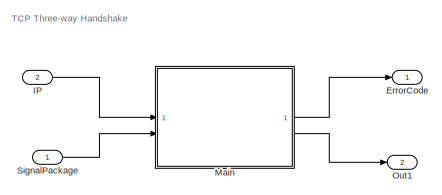
[diagram: root canvas - part 1/2, top left region]
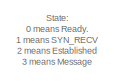
[diagram: root canvas - part 2/2, bottom right region]
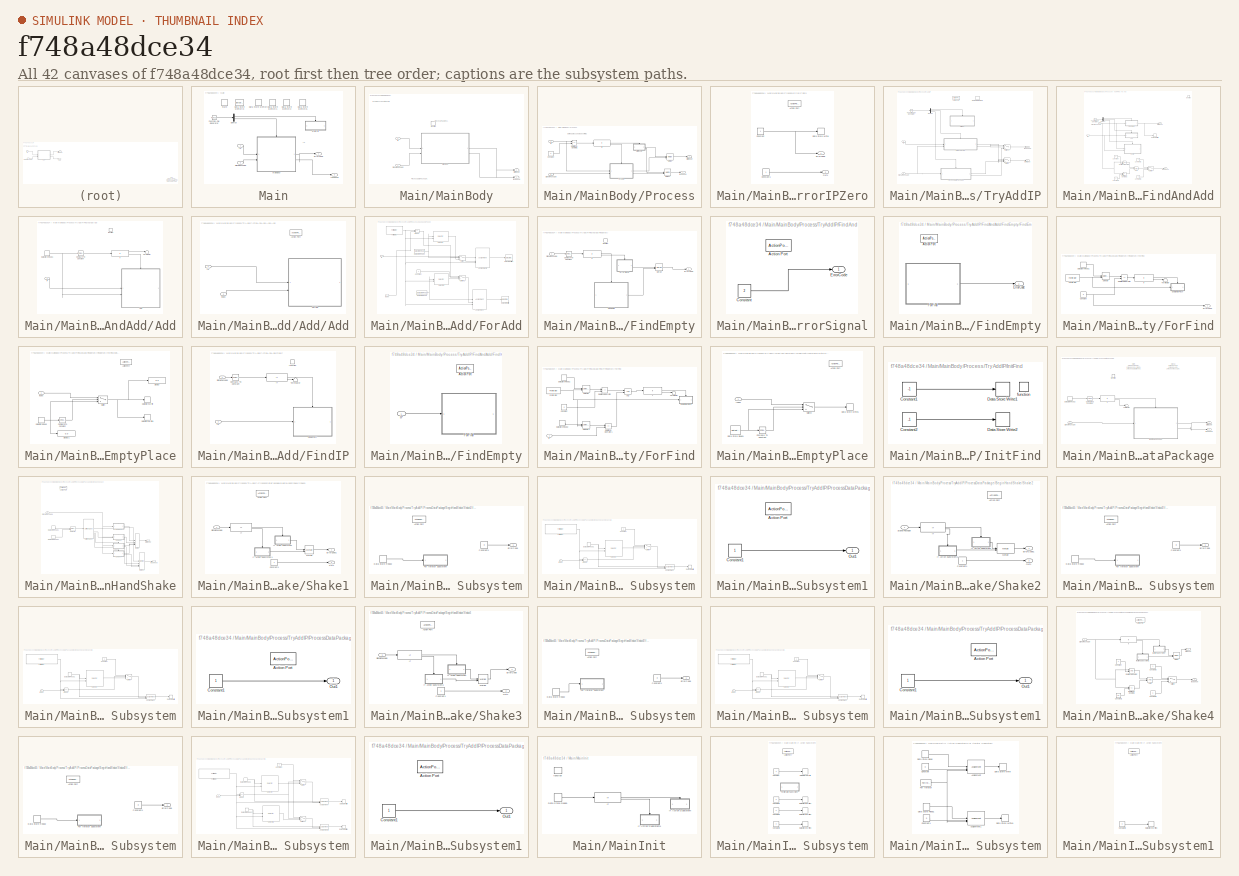
[diagram: thumbnail index - all 42 canvases of the model, root first then tree order]
MODEL slx_f748a48dce34
KIND model
CONFIG AbsTol = auto
CONFIG EnableMultiTasking = off
CONFIG FixedStep = 1
CONFIG MaxStep = auto
CONFIG MinStep = auto
CONFIG RelTol = 1e-3
CONFIG SampleTimeConstraint = Unconstrained
CONFIG SolverName = FixedStepAuto
CONFIG StartTime = 0.0
CONFIG StopTime = 50000000
BLOCK [Outport] ErrorCode
  OutDataTypeStr = int32
BLOCK [Inport] IP
  OutDataTypeStr = uint32
  Port = 2
BLOCK [SubSystem] Main
BLOCK [DataStoreMemory] Main/Data Store Memory
  DataStoreName = init
  OutDataTypeStr = int8
  ShowAdditionalParam = off
  WriteAfterWriteMsg = warning
BLOCK [DataStoreMemory] Main/Data Store Memory1
  DataStoreName = Index
  InitialValue = -1
  OutDataTypeStr = int32
  ShowAdditionalParam = off
  WriteAfterWriteMsg = warning
BLOCK [DataStoreMemory] Main/Data Store Memory2
  DataStoreName = Error
  OutDataTypeStr = int32
  ShowAdditionalParam = off
  WriteAfterWriteMsg = warning
BLOCK [DataStoreMemory] Main/Data Store Memory3
  DataStoreName = IP
  Dimensions = Len
  OutDataTypeStr = uint32
  ShowAdditionalParam = off
  WriteAfterWriteMsg = warning
BLOCK [DataStoreMemory] Main/Data Store Memory5
  DataStoreName = first
  OutDataTypeStr = int32
  ShowAdditionalParam = off
  WriteAfterWriteMsg = warning
BLOCK [Demux] Main/Demux
  Outputs = 2
BLOCK [Outport] Main/ErrorCode
  OutDataTypeStr = int32
BLOCK [Reference] Main/Function-Call Generator  REF=simulink/Ports &
Subsystems/Function-Call
Generator
  SourceBlock = simulink/Ports &\nSubsystems/Function-Call\nGenerator
  SourceType = Function-Call Generator
BLOCK [Inport] Main/IP
BLOCK [SubSystem] Main/MainBody
  TreatAsAtomicUnit = on
BLOCK [Outport] Main/MainBody/ErrorCode
  OutDataTypeStr = int32
BLOCK [Inport] Main/MainBody/IP
BLOCK [SubSystem] Main/MainBody/Process
BLOCK [Constant] Main/MainBody/Process/Constant
  OutDataTypeStr = uint32
  Value = 0
BLOCK [Outport] Main/MainBody/Process/ErrorCode
BLOCK [SubSystem] Main/MainBody/Process/ErrorIPZero
  TreatAsAtomicUnit = on
BLOCK [ActionPort] Main/MainBody/Process/ErrorIPZero/Action Port
  ActionPortLabel = if(u1)
BLOCK [Constant] Main/MainBody/Process/ErrorIPZero/Constant
  OutDataTypeStr = int32
BLOCK [Constant] Main/MainBody/Process/ErrorIPZero/Constant1
  OutDataTypeStr = int32
BLOCK [DataStoreWrite] Main/MainBody/Process/ErrorIPZero/Data Store Write
  DataStoreName = Error
  IndexOptions = Index vector (dialog)
  Indices = 1
  OutputSizes = 1
BLOCK [Outport] Main/MainBody/Process/ErrorIPZero/ErrorCode
BLOCK [Outport] Main/MainBody/Process/ErrorIPZero/Out1
  Port = 2
BLOCK [Inport] Main/MainBody/Process/IP
BLOCK [If] Main/MainBody/Process/If2
  IfExpression = u1
BLOCK [Merge] Main/MainBody/Process/Merge
BLOCK [Merge] Main/MainBody/Process/Merge1
BLOCK [RelationalOperator] Main/MainBody/Process/Relational Operator1
  InputSameDT = off
  Operator = ==
  OutDataTypeStr = boolean
BLOCK [Inport] Main/MainBody/Process/SignalPackage
  Port = 2
BLOCK [SubSystem] Main/MainBody/Process/TryAddIP
  TreatAsAtomicUnit = on
BLOCK [ActionPort] Main/MainBody/Process/TryAddIP/Action Port
  ActionPortLabel = else
BLOCK [DataStoreMemory] Main/MainBody/Process/TryAddIP/Data Store Memory
  DataStoreName = found
  InitialValue = -1
  OutDataTypeStr = int32
  ShowAdditionalParam = off
  WriteAfterWriteMsg = warning
BLOCK [Demux] Main/MainBody/Process/TryAddIP/Demux
  Outputs = 3
BLOCK [Outport] Main/MainBody/Process/TryAddIP/ErrorCode
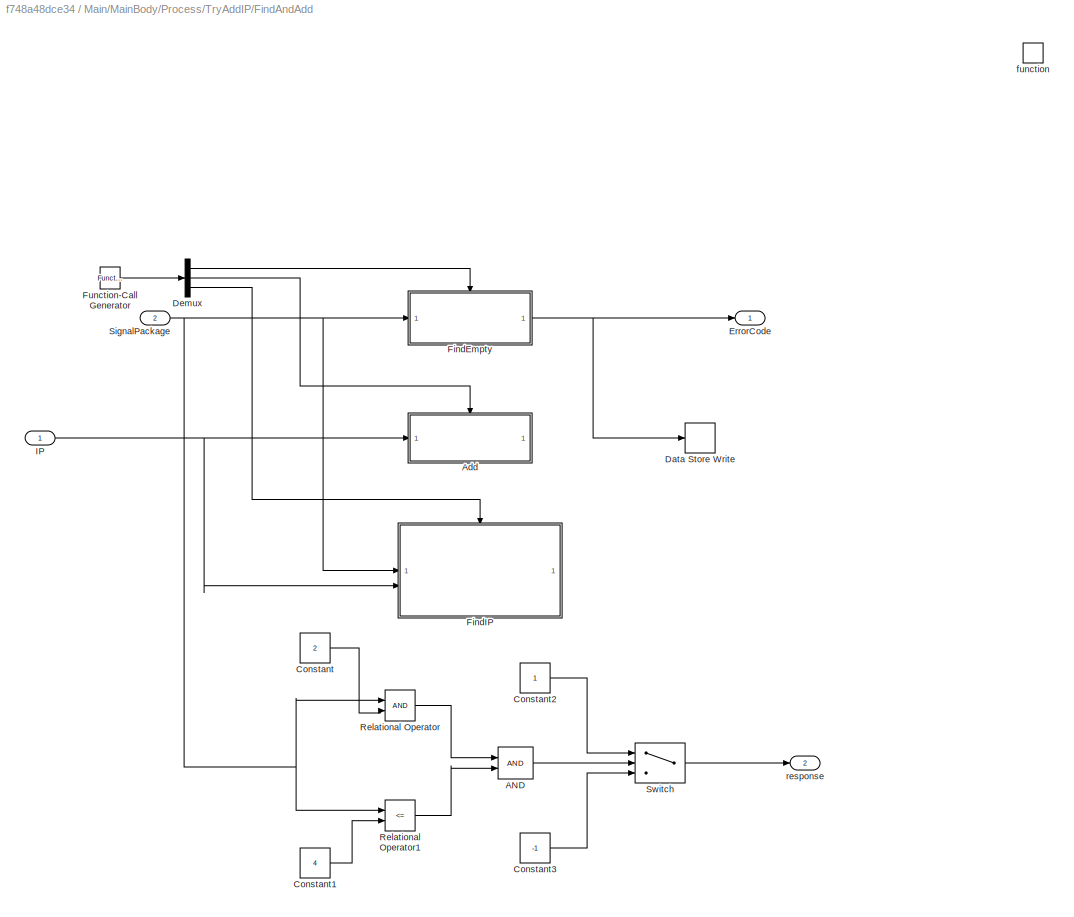
BLOCK [SubSystem] Main/MainBody/Process/TryAddIP/FindAndAdd
BLOCK [Logic] Main/MainBody/Process/TryAddIP/FindAndAdd/AND
  AllPortsSameDT = off
  IconShape = distinctive
  OutDataTypeStr = boolean
BLOCK [SubSystem] Main/MainBody/Process/TryAddIP/FindAndAdd/Add
BLOCK [SubSystem] Main/MainBody/Process/TryAddIP/FindAndAdd/Add/Add
  TreatAsAtomicUnit = on
BLOCK [ActionPort] Main/MainBody/Process/TryAddIP/FindAndAdd/Add/Add/Action Port
  ActionPortLabel = else
BLOCK [SubSystem] Main/MainBody/Process/TryAddIP/FindAndAdd/Add/Add/ForAdd
  TreatAsAtomicUnit = on
BLOCK [Assignment] Main/MainBody/Process/TryAddIP/FindAndAdd/Add/Add/ForAdd/Assignment
  DiagnosticForDimensions = Warning
  IndexMode = Zero-based
  IndexOptions = Index vector (port)
  Indices = 1
  OutputSizes = 1
BLOCK [Assignment] Main/MainBody/Process/TryAddIP/FindAndAdd/Add/Add/ForAdd/Assignment1
  DiagnosticForDimensions = Warning
  IndexMode = Zero-based
  IndexOptions = Index vector (port)
  Indices = 1
  OutputSizes = 1
BLOCK [Constant] Main/MainBody/Process/TryAddIP/FindAndAdd/Add/Add/ForAdd/Constant
  OutDataTypeStr = int32
BLOCK [DataStoreRead] Main/MainBody/Process/TryAddIP/FindAndAdd/Add/Add/ForAdd/Data Store Read
  DataStoreName = State
  IndexOptions = Index vector (dialog)
  Indices = 1
  OutputSizes = 1
BLOCK [DataStoreRead] Main/MainBody/Process/TryAddIP/FindAndAdd/Add/Add/ForAdd/Data Store Read1
  DataStoreName = IP
  IndexOptions = Index vector (dialog)
  Indices = 1
  OutputSizes = 1
BLOCK [DataStoreWrite] Main/MainBody/Process/TryAddIP/FindAndAdd/Add/Add/ForAdd/Data Store Write
  DataStoreName = State
  IndexOptions = Index vector (dialog)
  Indices = 1
  OutputSizes = 1
BLOCK [DataStoreWrite] Main/MainBody/Process/TryAddIP/FindAndAdd/Add/Add/ForAdd/Data Store Write1
  DataStoreName = IP
  IndexOptions = Index vector (dialog)
  Indices = 1
  OutputSizes = 1
BLOCK [RelationalOperator] Main/MainBody/Process/TryAddIP/FindAndAdd/Add/Add/ForAdd/Equal
  InputSameDT = off
  Operator = ==
  OutDataTypeStr = boolean
  RndMeth = Simplest
BLOCK [ForIterator] Main/MainBody/Process/TryAddIP/FindAndAdd/Add/Add/ForAdd/For Iterator
  IndexMode = Zero-based
  IterationLimit = Len
BLOCK [Inport] Main/MainBody/Process/TryAddIP/FindAndAdd/Add/Add/ForAdd/IP
BLOCK [Selector] Main/MainBody/Process/TryAddIP/FindAndAdd/Add/Add/ForAdd/Selector
  IndexMode = Zero-based
  IndexOptions = Index vector (port)
  Indices = [1 3]
  InputPortWidth = Len
  OutputSizes = 1
BLOCK [Selector] Main/MainBody/Process/TryAddIP/FindAndAdd/Add/Add/ForAdd/Selector1
  IndexMode = Zero-based
  IndexOptions = Index vector (port)
  Indices = [1 3]
  InputPortWidth = Len
  OutputSizes = 1
BLOCK [Switch] Main/MainBody/Process/TryAddIP/FindAndAdd/Add/Add/ForAdd/Switch
  Criteria = u2 ~= 0
  InputSameDT = off
  SaturateOnIntegerOverflow = off
BLOCK [Switch] Main/MainBody/Process/TryAddIP/FindAndAdd/Add/Add/ForAdd/Switch1
  Criteria = u2 ~= 0
  InputSameDT = off
  SaturateOnIntegerOverflow = off
BLOCK [Inport] Main/MainBody/Process/TryAddIP/FindAndAdd/Add/Add/ForAdd/index
  Port = 2
BLOCK [Inport] Main/MainBody/Process/TryAddIP/FindAndAdd/Add/Add/IP
BLOCK [Inport] Main/MainBody/Process/TryAddIP/FindAndAdd/Add/Add/index
  Port = 2
BLOCK [Reference] Main/MainBody/Process/TryAddIP/FindAndAdd/Add/Compare To Constant  REF=simulink/Logic and Bit
Operations/Compare
To Constant
  SourceBlock = simulink/Logic and Bit\nOperations/Compare\nTo Constant
  SourceType = Compare To Constant
BLOCK [DataStoreRead] Main/MainBody/Process/TryAddIP/FindAndAdd/Add/Data Store Read1
  DataStoreName = found
  IndexOptions = Index vector (dialog)
  Indices = 1
  OutputSizes = 1
BLOCK [Inport] Main/MainBody/Process/TryAddIP/FindAndAdd/Add/IP
BLOCK [If] Main/MainBody/Process/TryAddIP/FindAndAdd/Add/If
  IfExpression = u1 ~= 0
BLOCK [Terminator] Main/MainBody/Process/TryAddIP/FindAndAdd/Add/Terminator
BLOCK [TriggerPort] Main/MainBody/Process/TryAddIP/FindAndAdd/Add/function
  StatesWhenEnabling = held
  TriggerType = function-call
  VariantControl = (inherit)
BLOCK [Constant] Main/MainBody/Process/TryAddIP/FindAndAdd/Constant
  OutDataTypeStr = int32
  Value = 2
BLOCK [Constant] Main/MainBody/Process/TryAddIP/FindAndAdd/Constant1
  OutDataTypeStr = int32
  Value = 4
BLOCK [Constant] Main/MainBody/Process/TryAddIP/FindAndAdd/Constant2
  OutDataTypeStr = int32
BLOCK [Constant] Main/MainBody/Process/TryAddIP/FindAndAdd/Constant3
  OutDataTypeStr = int32
  Value = -1
BLOCK [DataStoreWrite] Main/MainBody/Process/TryAddIP/FindAndAdd/Data Store Write
  DataStoreName = Error
  IndexOptions = Index vector (dialog)
  Indices = 1
  OutputSizes = 1
BLOCK [Demux] Main/MainBody/Process/TryAddIP/FindAndAdd/Demux
  Outputs = 3
BLOCK [Outport] Main/MainBody/Process/TryAddIP/FindAndAdd/ErrorCode
BLOCK [SubSystem] Main/MainBody/Process/TryAddIP/FindAndAdd/FindEmpty
BLOCK [Reference] Main/MainBody/Process/TryAddIP/FindAndAdd/FindEmpty/Compare To Constant  REF=simulink/Logic and Bit
Operations/Compare
To Constant
  SourceBlock = simulink/Logic and Bit\nOperations/Compare\nTo Constant
  SourceType = Compare To Constant
BLOCK [Outport] Main/MainBody/Process/TryAddIP/FindAndAdd/FindEmpty/ErrorCode
BLOCK [SubSystem] Main/MainBody/Process/TryAddIP/FindAndAdd/FindEmpty/ErrorSignal
  TreatAsAtomicUnit = on
BLOCK [ActionPort] Main/MainBody/Process/TryAddIP/FindAndAdd/FindEmpty/ErrorSignal/Action Port
  ActionPortLabel = else
BLOCK [Constant] Main/MainBody/Process/TryAddIP/FindAndAdd/FindEmpty/ErrorSignal/Constant
  OutDataTypeStr = int32
  Value = 2
BLOCK [Outport] Main/MainBody/Process/TryAddIP/FindAndAdd/FindEmpty/ErrorSignal/ErrorCode
BLOCK [SubSystem] Main/MainBody/Process/TryAddIP/FindAndAdd/FindEmpty/FindEmpty
BLOCK [ActionPort] Main/MainBody/Process/TryAddIP/FindAndAdd/FindEmpty/FindEmpty/Action Port
  ActionPortLabel = if(u1 ~= 0)
BLOCK [Outport] Main/MainBody/Process/TryAddIP/FindAndAdd/FindEmpty/FindEmpty/ErrorCode
BLOCK [SubSystem] Main/MainBody/Process/TryAddIP/FindAndAdd/FindEmpty/FindEmpty/ForFind
  TreatAsAtomicUnit = on
BLOCK [Constant] Main/MainBody/Process/TryAddIP/FindAndAdd/FindEmpty/FindEmpty/ForFind/Constant
  OutDataTypeStr = int32
  Value = 0
BLOCK [DataStoreRead] Main/MainBody/Process/TryAddIP/FindAndAdd/FindEmpty/FindEmpty/ForFind/Data Store Read1
  DataStoreName = State
  IndexOptions = Index vector (dialog)
  Indices = 1
  OutputSizes = 1
BLOCK [Outport] Main/MainBody/Process/TryAddIP/FindAndAdd/FindEmpty/FindEmpty/ForFind/ErrorCode
BLOCK [SubSystem] Main/MainBody/Process/TryAddIP/FindAndAdd/FindEmpty/FindEmpty/ForFind/ExistEmptyPlace
  TreatAsAtomicUnit = on
BLOCK [ActionPort] Main/MainBody/Process/TryAddIP/FindAndAdd/FindEmpty/FindEmpty/ForFind/ExistEmptyPlace/Action Port
  ActionPortLabel = if(u1)
BLOCK [Reference] Main/MainBody/Process/TryAddIP/FindAndAdd/FindEmpty/FindEmpty/ForFind/ExistEmptyPlace/Compare To Constant  REF=simulink/Logic and Bit
Operations/Compare
To Constant
  SourceBlock = simulink/Logic and Bit\nOperations/Compare\nTo Constant
  SourceType = Compare To Constant
BLOCK [DataStoreRead] Main/MainBody/Process/TryAddIP/FindAndAdd/FindEmpty/FindEmpty/ForFind/ExistEmptyPlace/Data Store Read
  DataStoreName = found
  IndexOptions = Index vector (dialog)
  Indices = 1
  OutputSizes = 1
BLOCK [DataStoreWrite] Main/MainBody/Process/TryAddIP/FindAndAdd/FindEmpty/FindEmpty/ForFind/ExistEmptyPlace/Data Store Write
  DataStoreName = found
  IndexOptions = Index vector (dialog)
  Indices = 1
  OutputSizes = 1
BLOCK [DataStoreWrite] Main/MainBody/Process/TryAddIP/FindAndAdd/FindEmpty/FindEmpty/ForFind/ExistEmptyPlace/Data Store Write1
  DataStoreName = Index
  IndexOptions = Index vector (dialog)
  Indices = 1
  OutputSizes = 1
BLOCK [Display] Main/MainBody/Process/TryAddIP/FindAndAdd/FindEmpty/FindEmpty/ForFind/ExistEmptyPlace/Display
  Decimation = 1
BLOCK [Display] Main/MainBody/Process/TryAddIP/FindAndAdd/FindEmpty/FindEmpty/ForFind/ExistEmptyPlace/Display1
  Decimation = 1
BLOCK [Inport] Main/MainBody/Process/TryAddIP/FindAndAdd/FindEmpty/FindEmpty/ForFind/ExistEmptyPlace/Index
BLOCK [Switch] Main/MainBody/Process/TryAddIP/FindAndAdd/FindEmpty/FindEmpty/ForFind/ExistEmptyPlace/Switch
  Criteria = u2 > Threshold
  InputSameDT = off
  SaturateOnIntegerOverflow = off
BLOCK [ForIterator] Main/MainBody/Process/TryAddIP/FindAndAdd/FindEmpty/FindEmpty/ForFind/For Iterator
  IndexMode = Zero-based
  IterationLimit = Len
BLOCK [If] Main/MainBody/Process/TryAddIP/FindAndAdd/FindEmpty/FindEmpty/ForFind/If
  IfExpression = u1
BLOCK [RelationalOperator] Main/MainBody/Process/TryAddIP/FindAndAdd/FindEmpty/FindEmpty/ForFind/Relational Operator
  InputSameDT = off
  Operator = ==
  OutDataTypeStr = boolean
  RndMeth = Simplest
BLOCK [Selector] Main/MainBody/Process/TryAddIP/FindAndAdd/FindEmpty/FindEmpty/ForFind/Selector
  IndexMode = Zero-based
  IndexOptions = Index vector (port)
  Indices = [1 3]
  InputPortWidth = Len
  OutputSizes = 1
BLOCK [Terminator] Main/MainBody/Process/TryAddIP/FindAndAdd/FindEmpty/FindEmpty/ForFind/Terminator
BLOCK [If] Main/MainBody/Process/TryAddIP/FindAndAdd/FindEmpty/If
  IfExpression = u1 ~= 0
BLOCK [Merge] Main/MainBody/Process/TryAddIP/FindAndAdd/FindEmpty/Merge
BLOCK [Inport] Main/MainBody/Process/TryAddIP/FindAndAdd/FindEmpty/SignalPackage
BLOCK [TriggerPort] Main/MainBody/Process/TryAddIP/FindAndAdd/FindEmpty/function
  StatesWhenEnabling = held
  TriggerType = function-call
  VariantControl = (inherit)
BLOCK [SubSystem] Main/MainBody/Process/TryAddIP/FindAndAdd/FindIP
BLOCK [Reference] Main/MainBody/Process/TryAddIP/FindAndAdd/FindIP/Compare To Constant  REF=simulink/Logic and Bit
Operations/Compare
To Constant
  SourceBlock = simulink/Logic and Bit\nOperations/Compare\nTo Constant
  SourceType = Compare To Constant
BLOCK [SubSystem] Main/MainBody/Process/TryAddIP/FindAndAdd/FindIP/FindEmpty
BLOCK [ActionPort] Main/MainBody/Process/TryAddIP/FindAndAdd/FindIP/FindEmpty/Action Port
  ActionPortLabel = if(u1 ~= 0)
BLOCK [SubSystem] Main/MainBody/Process/TryAddIP/FindAndAdd/FindIP/FindEmpty/ForFind
  TreatAsAtomicUnit = on
BLOCK [Logic] Main/MainBody/Process/TryAddIP/FindAndAdd/FindIP/FindEmpty/ForFind/AND
  AllPortsSameDT = off
  IconShape = distinctive
  OutDataTypeStr = boolean
BLOCK [Constant] Main/MainBody/Process/TryAddIP/FindAndAdd/FindIP/FindEmpty/ForFind/Constant
  OutDataTypeStr = int32
  Value = 0
BLOCK [DataStoreRead] Main/MainBody/Process/TryAddIP/FindAndAdd/FindIP/FindEmpty/ForFind/Data Store Read1
  DataStoreName = State
  IndexOptions = Index vector (dialog)
  Indices = 1
  OutputSizes = 1
BLOCK [DataStoreRead] Main/MainBody/Process/TryAddIP/FindAndAdd/FindIP/FindEmpty/ForFind/Data Store Read2
  DataStoreName = IP
  IndexOptions = Index vector (dialog)
  Indices = 1
  OutputSizes = 1
BLOCK [SubSystem] Main/MainBody/Process/TryAddIP/FindAndAdd/FindIP/FindEmpty/ForFind/ExistEmptyPlace
  TreatAsAtomicUnit = on
BLOCK [ActionPort] Main/MainBody/Process/TryAddIP/FindAndAdd/FindIP/FindEmpty/ForFind/ExistEmptyPlace/Action Port
  ActionPortLabel = if(u1)
BLOCK [Reference] Main/MainBody/Process/TryAddIP/FindAndAdd/FindIP/FindEmpty/ForFind/ExistEmptyPlace/Compare To Constant  REF=simulink/Logic and Bit
Operations/Compare
To Constant
  SourceBlock = simulink/Logic and Bit\nOperations/Compare\nTo Constant
  SourceType = Compare To Constant
BLOCK [DataStoreRead] Main/MainBody/Process/TryAddIP/FindAndAdd/FindIP/FindEmpty/ForFind/ExistEmptyPlace/Data Store Read1
  DataStoreName = Index
  IndexOptions = Index vector (dialog)
  Indices = 1
  OutputSizes = 1
BLOCK [DataStoreWrite] Main/MainBody/Process/TryAddIP/FindAndAdd/FindIP/FindEmpty/ForFind/ExistEmptyPlace/Data Store Write1
  DataStoreName = Index
  IndexOptions = Index vector (dialog)
  Indices = 1
  OutputSizes = 1
BLOCK [Inport] Main/MainBody/Process/TryAddIP/FindAndAdd/FindIP/FindEmpty/ForFind/ExistEmptyPlace/Index
BLOCK [Switch] Main/MainBody/Process/TryAddIP/FindAndAdd/FindIP/FindEmpty/ForFind/ExistEmptyPlace/Switch
  Criteria = u2 > Threshold
  InputSameDT = off
  SaturateOnIntegerOverflow = off
BLOCK [ForIterator] Main/MainBody/Process/TryAddIP/FindAndAdd/FindIP/FindEmpty/ForFind/For Iterator
  IndexMode = Zero-based
  IterationLimit = Len
BLOCK [Inport] Main/MainBody/Process/TryAddIP/FindAndAdd/FindIP/FindEmpty/ForFind/IP
BLOCK [If] Main/MainBody/Process/TryAddIP/FindAndAdd/FindIP/FindEmpty/ForFind/If
  IfExpression = u1
BLOCK [RelationalOperator] Main/MainBody/Process/TryAddIP/FindAndAdd/FindIP/FindEmpty/ForFind/Relational Operator
  InputSameDT = off
  Operator = ~=
  OutDataTypeStr = boolean
  RndMeth = Simplest
BLOCK [RelationalOperator] Main/MainBody/Process/TryAddIP/FindAndAdd/FindIP/FindEmpty/ForFind/Relational Operator1
  InputSameDT = off
  Operator = ==
  OutDataTypeStr = boolean
  RndMeth = Simplest
BLOCK [Selector] Main/MainBody/Process/TryAddIP/FindAndAdd/FindIP/FindEmpty/ForFind/Selector
  IndexMode = Zero-based
  IndexOptions = Index vector (port)
  Indices = [1 3]
  InputPortWidth = Len
  OutputSizes = 1
BLOCK [Selector] Main/MainBody/Process/TryAddIP/FindAndAdd/FindIP/FindEmpty/ForFind/Selector1
  IndexMode = Zero-based
  IndexOptions = Index vector (port)
  Indices = [1 3]
  InputPortWidth = Len
  OutputSizes = 1
BLOCK [Terminator] Main/MainBody/Process/TryAddIP/FindAndAdd/FindIP/FindEmpty/ForFind/Terminator
BLOCK [Inport] Main/MainBody/Process/TryAddIP/FindAndAdd/FindIP/FindEmpty/IP
BLOCK [Inport] Main/MainBody/Process/TryAddIP/FindAndAdd/FindIP/IP
  Port = 2
BLOCK [If] Main/MainBody/Process/TryAddIP/FindAndAdd/FindIP/If
  IfExpression = u1 ~= 0
BLOCK [Inport] Main/MainBody/Process/TryAddIP/FindAndAdd/FindIP/SignalPackage
BLOCK [Terminator] Main/MainBody/Process/TryAddIP/FindAndAdd/FindIP/Terminator
BLOCK [TriggerPort] Main/MainBody/Process/TryAddIP/FindAndAdd/FindIP/function
  StatesWhenEnabling = held
  TriggerType = function-call
  VariantControl = (inherit)
BLOCK [Reference] Main/MainBody/Process/TryAddIP/FindAndAdd/Function-Call Generator  REF=simulink/Ports &
Subsystems/Function-Call
Generator
  SourceBlock = simulink/Ports &\nSubsystems/Function-Call\nGenerator
  SourceType = Function-Call Generator
BLOCK [Inport] Main/MainBody/Process/TryAddIP/FindAndAdd/IP
BLOCK [RelationalOperator] Main/MainBody/Process/TryAddIP/FindAndAdd/Relational Operator
  InputSameDT = off
  OutDataTypeStr = boolean
  RndMeth = Simplest
BLOCK [RelationalOperator] Main/MainBody/Process/TryAddIP/FindAndAdd/Relational Operator1
  InputSameDT = off
  Operator = <=
  OutDataTypeStr = boolean
  RndMeth = Simplest
BLOCK [Inport] Main/MainBody/Process/TryAddIP/FindAndAdd/SignalPackage
  Port = 2
BLOCK [Switch] Main/MainBody/Process/TryAddIP/FindAndAdd/Switch
  Criteria = u2 > Threshold
  InputSameDT = off
  SaturateOnIntegerOverflow = off
BLOCK [TriggerPort] Main/MainBody/Process/TryAddIP/FindAndAdd/function
  StatesWhenEnabling = held
  TriggerType = function-call
  VariantControl = (inherit)
BLOCK [Outport] Main/MainBody/Process/TryAddIP/FindAndAdd/response
  Port = 2
BLOCK [Reference] Main/MainBody/Process/TryAddIP/Function-Call Generator  REF=simulink/Ports &
Subsystems/Function-Call
Generator
  SourceBlock = simulink/Ports &\nSubsystems/Function-Call\nGenerator
  SourceType = Function-Call Generator
BLOCK [Inport] Main/MainBody/Process/TryAddIP/IP
BLOCK [SubSystem] Main/MainBody/Process/TryAddIP/InitFind
BLOCK [Constant] Main/MainBody/Process/TryAddIP/InitFind/Constant1
  OutDataTypeStr = int32
  Value = -1
BLOCK [Constant] Main/MainBody/Process/TryAddIP/InitFind/Constant2
  OutDataTypeStr = int32
  Value = -1
BLOCK [DataStoreWrite] Main/MainBody/Process/TryAddIP/InitFind/Data Store Write1
  DataStoreName = found
  IndexOptions = Index vector (dialog)
  Indices = 1
  OutputSizes = 1
BLOCK [DataStoreWrite] Main/MainBody/Process/TryAddIP/InitFind/Data Store Write2
  DataStoreName = Index
  IndexOptions = Index vector (dialog)
  Indices = 1
  OutputSizes = 1
BLOCK [TriggerPort] Main/MainBody/Process/TryAddIP/InitFind/function
  StatesWhenEnabling = held
  TriggerType = function-call
  VariantControl = (inherit)
BLOCK [SubSystem] Main/MainBody/Process/TryAddIP/ProcessDataPackage
  TreatAsAtomicUnit = on
BLOCK [SubSystem] Main/MainBody/Process/TryAddIP/ProcessDataPackage/BeginHandShake
  TreatAsAtomicUnit = on
BLOCK [ActionPort] Main/MainBody/Process/TryAddIP/ProcessDataPackage/BeginHandShake/Action Port
  ActionPortLabel = if(u1 ~= 0)
BLOCK [DataStoreRead] Main/MainBody/Process/TryAddIP/ProcessDataPackage/BeginHandShake/Data Store Read1
  DataStoreName = State
  IndexOptions = Index vector (dialog)
  Indices = 1
  OutputSizes = 1
BLOCK [DataStoreRead] Main/MainBody/Process/TryAddIP/ProcessDataPackage/BeginHandShake/Data Store Read2
  DataStoreName = Index
  IndexOptions = Index vector (dialog)
  Indices = 1
  OutputSizes = 1
BLOCK [Outport] Main/MainBody/Process/TryAddIP/ProcessDataPackage/BeginHandShake/ErrorCode
BLOCK [Merge] Main/MainBody/Process/TryAddIP/ProcessDataPackage/BeginHandShake/Merge
  Inputs = 4
BLOCK [Merge] Main/MainBody/Process/TryAddIP/ProcessDataPackage/BeginHandShake/Merge1
  Inputs = 4
BLOCK [Selector] Main/MainBody/Process/TryAddIP/ProcessDataPackage/BeginHandShake/Selector
  IndexMode = Zero-based
  IndexOptions = Index vector (port)
  Indices = [1 3]
  InputPortWidth = Len
  OutputSizes = 1
BLOCK [SubSystem] Main/MainBody/Process/TryAddIP/ProcessDataPackage/BeginHandShake/Shake1
  TreatAsAtomicUnit = on
BLOCK [ActionPort] Main/MainBody/Process/TryAddIP/ProcessDataPackage/BeginHandShake/Shake1/Action Port
  ActionPortLabel = case [ 1 ]:
BLOCK [Constant] Main/MainBody/Process/TryAddIP/ProcessDataPackage/BeginHandShake/Shake1/Constant1
  OutDataTypeStr = int32
BLOCK [Outport] Main/MainBody/Process/TryAddIP/ProcessDataPackage/BeginHandShake/Shake1/ErrorCode1
  OutDataTypeStr = int32
BLOCK [If] Main/MainBody/Process/TryAddIP/ProcessDataPackage/BeginHandShake/Shake1/If
  IfExpression = u1 == 0
BLOCK [SubSystem] Main/MainBody/Process/TryAddIP/ProcessDataPackage/BeginHandShake/Shake1/If Action Subsystem
  TreatAsAtomicUnit = on
BLOCK [ActionPort] Main/MainBody/Process/TryAddIP/ProcessDataPackage/BeginHandShake/Shake1/If Action Subsystem/Action Port
  ActionPortLabel = if(u1 == 0)
BLOCK [Constant] Main/MainBody/Process/TryAddIP/ProcessDataPackage/BeginHandShake/Shake1/If Action Subsystem/Constant1
  OutDataTypeStr = int32
  Value = 0
BLOCK [DataStoreRead] Main/MainBody/Process/TryAddIP/ProcessDataPackage/BeginHandShake/Shake1/If Action Subsystem/Data Store Read2
  DataStoreName = Index
  IndexOptions = Index vector (dialog)
  Indices = 1
  OutputSizes = 1
BLOCK [Outport] Main/MainBody/Process/TryAddIP/ProcessDataPackage/BeginHandShake/Shake1/If Action Subsystem/ErrorCode
BLOCK [SubSystem] Main/MainBody/Process/TryAddIP/ProcessDataPackage/BeginHandShake/Shake1/If Action Subsystem/For Iterator Subsystem
  TreatAsAtomicUnit = on
BLOCK [Assignment] Main/MainBody/Process/TryAddIP/ProcessDataPackage/BeginHandShake/Shake1/If Action Subsystem/For Iterator Subsystem/Assignment
  DiagnosticForDimensions = Warning
  IndexMode = Zero-based
  IndexOptions = Index vector (port)
  Indices = 1
  OutputSizes = 1
BLOCK [Constant] Main/MainBody/Process/TryAddIP/ProcessDataPackage/BeginHandShake/Shake1/If Action Subsystem/For Iterator Subsystem/Constant
  OutDataTypeStr = int32
  Value = 2
BLOCK [DataStoreRead] Main/MainBody/Process/TryAddIP/ProcessDataPackage/BeginHandShake/Shake1/If Action Subsystem/For Iterator Subsystem/Data Store Read1
  DataStoreName = State
  IndexOptions = Index vector (dialog)
  Indices = 1
  OutputSizes = 1
BLOCK [DataStoreWrite] Main/MainBody/Process/TryAddIP/ProcessDataPackage/BeginHandShake/Shake1/If Action Subsystem/For Iterator Subsystem/Data Store Write
  DataStoreName = State
  IndexOptions = Index vector (dialog)
  Indices = 1
  OutputSizes = 1
BLOCK [RelationalOperator] Main/MainBody/Process/TryAddIP/ProcessDataPackage/BeginHandShake/Shake1/If Action Subsystem/For Iterator Subsystem/Equal
  InputSameDT = off
  Operator = ==
  OutDataTypeStr = boolean
  RndMeth = Simplest
BLOCK [ForIterator] Main/MainBody/Process/TryAddIP/ProcessDataPackage/BeginHandShake/Shake1/If Action Subsystem/For Iterator Subsystem/For Iterator
  IndexMode = Zero-based
  IterationLimit = Len
BLOCK [Selector] Main/MainBody/Process/TryAddIP/ProcessDataPackage/BeginHandShake/Shake1/If Action Subsystem/For Iterator Subsystem/Selector
  IndexMode = Zero-based
  IndexOptions = Index vector (port)
  Indices = [1 3]
  InputPortWidth = Len
  OutputSizes = 1
BLOCK [Switch] Main/MainBody/Process/TryAddIP/ProcessDataPackage/BeginHandShake/Shake1/If Action Subsystem/For Iterator Subsystem/Switch
  Criteria = u2 ~= 0
  InputSameDT = off
  SaturateOnIntegerOverflow = off
BLOCK [Inport] Main/MainBody/Process/TryAddIP/ProcessDataPackage/BeginHandShake/Shake1/If Action Subsystem/For Iterator Subsystem/index
BLOCK [SubSystem] Main/MainBody/Process/TryAddIP/ProcessDataPackage/BeginHandShake/Shake1/If Action Subsystem1
  TreatAsAtomicUnit = on
BLOCK [ActionPort] Main/MainBody/Process/TryAddIP/ProcessDataPackage/BeginHandShake/Shake1/If Action Subsystem1/Action Port
  ActionPortLabel = else
BLOCK [Constant] Main/MainBody/Process/TryAddIP/ProcessDataPackage/BeginHandShake/Shake1/If Action Subsystem1/Constant1
  OutDataTypeStr = int32
BLOCK [Outport] Main/MainBody/Process/TryAddIP/ProcessDataPackage/BeginHandShake/Shake1/If Action Subsystem1/Out1
BLOCK [Merge] Main/MainBody/Process/TryAddIP/ProcessDataPackage/BeginHandShake/Shake1/Merge
BLOCK [Outport] Main/MainBody/Process/TryAddIP/ProcessDataPackage/BeginHandShake/Shake1/Out1
  Port = 2
BLOCK [Inport] Main/MainBody/Process/TryAddIP/ProcessDataPackage/BeginHandShake/Shake1/SignalPackage
BLOCK [SubSystem] Main/MainBody/Process/TryAddIP/ProcessDataPackage/BeginHandShake/Shake2
  TreatAsAtomicUnit = on
BLOCK [ActionPort] Main/MainBody/Process/TryAddIP/ProcessDataPackage/BeginHandShake/Shake2/Action Port
  ActionPortLabel = case [ 2 ]:
BLOCK [Constant] Main/MainBody/Process/TryAddIP/ProcessDataPackage/BeginHandShake/Shake2/Constant1
  OutDataTypeStr = int32
BLOCK [Outport] Main/MainBody/Process/TryAddIP/ProcessDataPackage/BeginHandShake/Shake2/ErrorCode1
  OutDataTypeStr = int32
BLOCK [If] Main/MainBody/Process/TryAddIP/ProcessDataPackage/BeginHandShake/Shake2/If
  IfExpression = u1 == 2
BLOCK [SubSystem] Main/MainBody/Process/TryAddIP/ProcessDataPackage/BeginHandShake/Shake2/If Action Subsystem
  TreatAsAtomicUnit = on
BLOCK [ActionPort] Main/MainBody/Process/TryAddIP/ProcessDataPackage/BeginHandShake/Shake2/If Action Subsystem/Action Port
  ActionPortLabel = if(u1 == 2)
BLOCK [Constant] Main/MainBody/Process/TryAddIP/ProcessDataPackage/BeginHandShake/Shake2/If Action Subsystem/Constant1
  OutDataTypeStr = int32
  Value = 0
BLOCK [DataStoreRead] Main/MainBody/Process/TryAddIP/ProcessDataPackage/BeginHandShake/Shake2/If Action Subsystem/Data Store Read2
  DataStoreName = Index
  IndexOptions = Index vector (dialog)
  Indices = 1
  OutputSizes = 1
BLOCK [Outport] Main/MainBody/Process/TryAddIP/ProcessDataPackage/BeginHandShake/Shake2/If Action Subsystem/ErrorCode
BLOCK [SubSystem] Main/MainBody/Process/TryAddIP/ProcessDataPackage/BeginHandShake/Shake2/If Action Subsystem/For Iterator Subsystem
  TreatAsAtomicUnit = on
BLOCK [Assignment] Main/MainBody/Process/TryAddIP/ProcessDataPackage/BeginHandShake/Shake2/If Action Subsystem/For Iterator Subsystem/Assignment
  DiagnosticForDimensions = Warning
  IndexMode = Zero-based
  IndexOptions = Index vector (port)
  Indices = 1
  OutputSizes = 1
BLOCK [Constant] Main/MainBody/Process/TryAddIP/ProcessDataPackage/BeginHandShake/Shake2/If Action Subsystem/For Iterator Subsystem/Constant
  OutDataTypeStr = int32
  Value = 3
BLOCK [DataStoreRead] Main/MainBody/Process/TryAddIP/ProcessDataPackage/BeginHandShake/Shake2/If Action Subsystem/For Iterator Subsystem/Data Store Read1
  DataStoreName = State
  IndexOptions = Index vector (dialog)
  Indices = 1
  OutputSizes = 1
BLOCK [DataStoreWrite] Main/MainBody/Process/TryAddIP/ProcessDataPackage/BeginHandShake/Shake2/If Action Subsystem/For Iterator Subsystem/Data Store Write
  DataStoreName = State
  IndexOptions = Index vector (dialog)
  Indices = 1
  OutputSizes = 1
BLOCK [RelationalOperator] Main/MainBody/Process/TryAddIP/ProcessDataPackage/BeginHandShake/Shake2/If Action Subsystem/For Iterator Subsystem/Equal
  InputSameDT = off
  Operator = ==
  OutDataTypeStr = boolean
  RndMeth = Simplest
BLOCK [ForIterator] Main/MainBody/Process/TryAddIP/ProcessDataPackage/BeginHandShake/Shake2/If Action Subsystem/For Iterator Subsystem/For Iterator
  IndexMode = Zero-based
  IterationLimit = Len
BLOCK [Selector] Main/MainBody/Process/TryAddIP/ProcessDataPackage/BeginHandShake/Shake2/If Action Subsystem/For Iterator Subsystem/Selector
  IndexMode = Zero-based
  IndexOptions = Index vector (port)
  Indices = [1 3]
  InputPortWidth = Len
  OutputSizes = 1
BLOCK [Switch] Main/MainBody/Process/TryAddIP/ProcessDataPackage/BeginHandShake/Shake2/If Action Subsystem/For Iterator Subsystem/Switch
  Criteria = u2 ~= 0
  InputSameDT = off
  SaturateOnIntegerOverflow = off
BLOCK [Inport] Main/MainBody/Process/TryAddIP/ProcessDataPackage/BeginHandShake/Shake2/If Action Subsystem/For Iterator Subsystem/index
BLOCK [SubSystem] Main/MainBody/Process/TryAddIP/ProcessDataPackage/BeginHandShake/Shake2/If Action Subsystem1
  TreatAsAtomicUnit = on
BLOCK [ActionPort] Main/MainBody/Process/TryAddIP/ProcessDataPackage/BeginHandShake/Shake2/If Action Subsystem1/Action Port
  ActionPortLabel = else
BLOCK [Constant] Main/MainBody/Process/TryAddIP/ProcessDataPackage/BeginHandShake/Shake2/If Action Subsystem1/Constant1
  OutDataTypeStr = int32
BLOCK [Outport] Main/MainBody/Process/TryAddIP/ProcessDataPackage/BeginHandShake/Shake2/If Action Subsystem1/Out1
BLOCK [Merge] Main/MainBody/Process/TryAddIP/ProcessDataPackage/BeginHandShake/Shake2/Merge
BLOCK [Outport] Main/MainBody/Process/TryAddIP/ProcessDataPackage/BeginHandShake/Shake2/Out1
  Port = 2
BLOCK [Inport] Main/MainBody/Process/TryAddIP/ProcessDataPackage/BeginHandShake/Shake2/SignalPackage
BLOCK [SubSystem] Main/MainBody/Process/TryAddIP/ProcessDataPackage/BeginHandShake/Shake3
  TreatAsAtomicUnit = on
BLOCK [ActionPort] Main/MainBody/Process/TryAddIP/ProcessDataPackage/BeginHandShake/Shake3/Action Port
  ActionPortLabel = case [ 3 ]:
BLOCK [Constant] Main/MainBody/Process/TryAddIP/ProcessDataPackage/BeginHandShake/Shake3/Constant1
  OutDataTypeStr = int32
BLOCK [Outport] Main/MainBody/Process/TryAddIP/ProcessDataPackage/BeginHandShake/Shake3/ErrorCode
  OutDataTypeStr = int32
BLOCK [If] Main/MainBody/Process/TryAddIP/ProcessDataPackage/BeginHandShake/Shake3/If
  IfExpression = u1 == 3
BLOCK [SubSystem] Main/MainBody/Process/TryAddIP/ProcessDataPackage/BeginHandShake/Shake3/If Action Subsystem
  TreatAsAtomicUnit = on
BLOCK [ActionPort] Main/MainBody/Process/TryAddIP/ProcessDataPackage/BeginHandShake/Shake3/If Action Subsystem/Action Port
  ActionPortLabel = if(u1 == 3)
BLOCK [Constant] Main/MainBody/Process/TryAddIP/ProcessDataPackage/BeginHandShake/Shake3/If Action Subsystem/Constant1
  OutDataTypeStr = int32
  Value = 0
BLOCK [DataStoreRead] Main/MainBody/Process/TryAddIP/ProcessDataPackage/BeginHandShake/Shake3/If Action Subsystem/Data Store Read2
  DataStoreName = Index
  IndexOptions = Index vector (dialog)
  Indices = 1
  OutputSizes = 1
BLOCK [Outport] Main/MainBody/Process/TryAddIP/ProcessDataPackage/BeginHandShake/Shake3/If Action Subsystem/ErrorCode
BLOCK [SubSystem] Main/MainBody/Process/TryAddIP/ProcessDataPackage/BeginHandShake/Shake3/If Action Subsystem/For Iterator Subsystem
  TreatAsAtomicUnit = on
BLOCK [Assignment] Main/MainBody/Process/TryAddIP/ProcessDataPackage/BeginHandShake/Shake3/If Action Subsystem/For Iterator Subsystem/Assignment
  DiagnosticForDimensions = Warning
  IndexMode = Zero-based
  IndexOptions = Index vector (port)
  Indices = 1
  OutputSizes = 1
BLOCK [Constant] Main/MainBody/Process/TryAddIP/ProcessDataPackage/BeginHandShake/Shake3/If Action Subsystem/For Iterator Subsystem/Constant
  OutDataTypeStr = int32
  Value = 4
BLOCK [DataStoreRead] Main/MainBody/Process/TryAddIP/ProcessDataPackage/BeginHandShake/Shake3/If Action Subsystem/For Iterator Subsystem/Data Store Read1
  DataStoreName = State
  IndexOptions = Index vector (dialog)
  Indices = 1
  OutputSizes = 1
BLOCK [DataStoreWrite] Main/MainBody/Process/TryAddIP/ProcessDataPackage/BeginHandShake/Shake3/If Action Subsystem/For Iterator Subsystem/Data Store Write
  DataStoreName = State
  IndexOptions = Index vector (dialog)
  Indices = 1
  OutputSizes = 1
BLOCK [RelationalOperator] Main/MainBody/Process/TryAddIP/ProcessDataPackage/BeginHandShake/Shake3/If Action Subsystem/For Iterator Subsystem/Equal
  InputSameDT = off
  Operator = ==
  OutDataTypeStr = boolean
  RndMeth = Simplest
BLOCK [ForIterator] Main/MainBody/Process/TryAddIP/ProcessDataPackage/BeginHandShake/Shake3/If Action Subsystem/For Iterator Subsystem/For Iterator
  IndexMode = Zero-based
  IterationLimit = Len
BLOCK [Selector] Main/MainBody/Process/TryAddIP/ProcessDataPackage/BeginHandShake/Shake3/If Action Subsystem/For Iterator Subsystem/Selector
  IndexMode = Zero-based
  IndexOptions = Index vector (port)
  Indices = [1 3]
  InputPortWidth = Len
  OutputSizes = 1
BLOCK [Switch] Main/MainBody/Process/TryAddIP/ProcessDataPackage/BeginHandShake/Shake3/If Action Subsystem/For Iterator Subsystem/Switch
  Criteria = u2 ~= 0
  InputSameDT = off
  SaturateOnIntegerOverflow = off
BLOCK [Inport] Main/MainBody/Process/TryAddIP/ProcessDataPackage/BeginHandShake/Shake3/If Action Subsystem/For Iterator Subsystem/index
BLOCK [SubSystem] Main/MainBody/Process/TryAddIP/ProcessDataPackage/BeginHandShake/Shake3/If Action Subsystem1
  TreatAsAtomicUnit = on
BLOCK [ActionPort] Main/MainBody/Process/TryAddIP/ProcessDataPackage/BeginHandShake/Shake3/If Action Subsystem1/Action Port
  ActionPortLabel = else
BLOCK [Constant] Main/MainBody/Process/TryAddIP/ProcessDataPackage/BeginHandShake/Shake3/If Action Subsystem1/Constant1
  OutDataTypeStr = int32
BLOCK [Outport] Main/MainBody/Process/TryAddIP/ProcessDataPackage/BeginHandShake/Shake3/If Action Subsystem1/Out1
BLOCK [Merge] Main/MainBody/Process/TryAddIP/ProcessDataPackage/BeginHandShake/Shake3/Merge
BLOCK [Outport] Main/MainBody/Process/TryAddIP/ProcessDataPackage/BeginHandShake/Shake3/Out1
  Port = 2
BLOCK [Inport] Main/MainBody/Process/TryAddIP/ProcessDataPackage/BeginHandShake/Shake3/SignalPackage
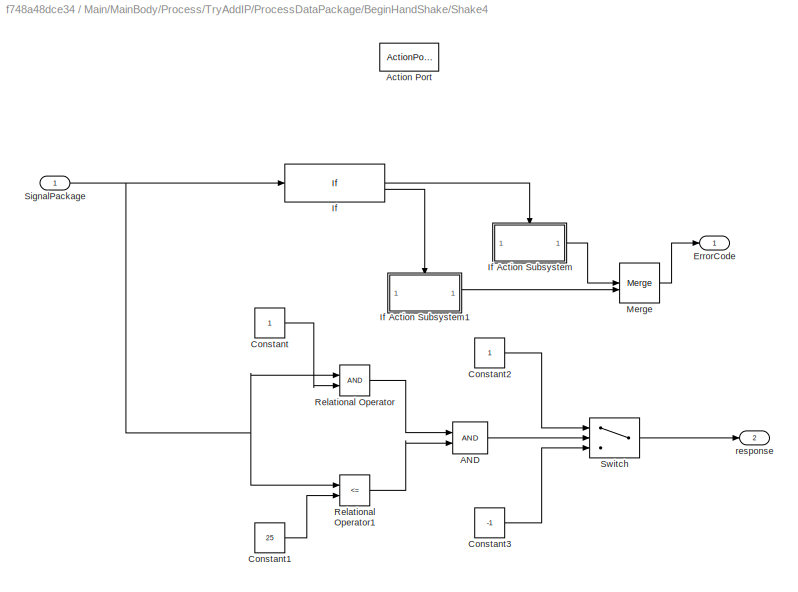
BLOCK [SubSystem] Main/MainBody/Process/TryAddIP/ProcessDataPackage/BeginHandShake/Shake4
  TreatAsAtomicUnit = on
BLOCK [Logic] Main/MainBody/Process/TryAddIP/ProcessDataPackage/BeginHandShake/Shake4/AND
  AllPortsSameDT = off
  IconShape = distinctive
  OutDataTypeStr = boolean
BLOCK [ActionPort] Main/MainBody/Process/TryAddIP/ProcessDataPackage/BeginHandShake/Shake4/Action Port
  ActionPortLabel = default:
BLOCK [Constant] Main/MainBody/Process/TryAddIP/ProcessDataPackage/BeginHandShake/Shake4/Constant
  OutDataTypeStr = int32
BLOCK [Constant] Main/MainBody/Process/TryAddIP/ProcessDataPackage/BeginHandShake/Shake4/Constant1
  OutDataTypeStr = int32
  Value = 25
BLOCK [Constant] Main/MainBody/Process/TryAddIP/ProcessDataPackage/BeginHandShake/Shake4/Constant2
  OutDataTypeStr = int32
BLOCK [Constant] Main/MainBody/Process/TryAddIP/ProcessDataPackage/BeginHandShake/Shake4/Constant3
  OutDataTypeStr = int32
  Value = -1
BLOCK [Outport] Main/MainBody/Process/TryAddIP/ProcessDataPackage/BeginHandShake/Shake4/ErrorCode
  OutDataTypeStr = int32
BLOCK [If] Main/MainBody/Process/TryAddIP/ProcessDataPackage/BeginHandShake/Shake4/If
  IfExpression = u1 == 4
BLOCK [SubSystem] Main/MainBody/Process/TryAddIP/ProcessDataPackage/BeginHandShake/Shake4/If Action Subsystem
  TreatAsAtomicUnit = on
BLOCK [ActionPort] Main/MainBody/Process/TryAddIP/ProcessDataPackage/BeginHandShake/Shake4/If Action Subsystem/Action Port
  ActionPortLabel = if(u1 == 4)
BLOCK [Constant] Main/MainBody/Process/TryAddIP/ProcessDataPackage/BeginHandShake/Shake4/If Action Subsystem/Constant1
  OutDataTypeStr = int32
  Value = 0
BLOCK [DataStoreRead] Main/MainBody/Process/TryAddIP/ProcessDataPackage/BeginHandShake/Shake4/If Action Subsystem/Data Store Read2
  DataStoreName = Index
  IndexOptions = Index vector (dialog)
  Indices = 1
  OutputSizes = 1
BLOCK [Outport] Main/MainBody/Process/TryAddIP/ProcessDataPackage/BeginHandShake/Shake4/If Action Subsystem/ErrorCode
BLOCK [SubSystem] Main/MainBody/Process/TryAddIP/ProcessDataPackage/BeginHandShake/Shake4/If Action Subsystem/For Iterator Subsystem
  TreatAsAtomicUnit = on
BLOCK [Assignment] Main/MainBody/Process/TryAddIP/ProcessDataPackage/BeginHandShake/Shake4/If Action Subsystem/For Iterator Subsystem/Assignment
  DiagnosticForDimensions = Warning
  IndexMode = Zero-based
  IndexOptions = Index vector (port)
  Indices = 1
  OutputSizes = 1
BLOCK [Assignment] Main/MainBody/Process/TryAddIP/ProcessDataPackage/BeginHandShake/Shake4/If Action Subsystem/For Iterator Subsystem/Assignment1
  DiagnosticForDimensions = Warning
  IndexMode = Zero-based
  IndexOptions = Index vector (port)
  Indices = 1
  OutputSizes = 1
BLOCK [Constant] Main/MainBody/Process/TryAddIP/ProcessDataPackage/BeginHandShake/Shake4/If Action Subsystem/For Iterator Subsystem/Constant
  OutDataTypeStr = int32
  Value = 0
BLOCK [DataStoreRead] Main/MainBody/Process/TryAddIP/ProcessDataPackage/BeginHandShake/Shake4/If Action Subsystem/For Iterator Subsystem/Data Store Read1
  DataStoreName = State
  IndexOptions = Index vector (dialog)
  Indices = 1
  OutputSizes = 1
BLOCK [DataStoreRead] Main/MainBody/Process/TryAddIP/ProcessDataPackage/BeginHandShake/Shake4/If Action Subsystem/For Iterator Subsystem/Data Store Read2
  DataStoreName = IP
  IndexOptions = Index vector (dialog)
  Indices = 1
  OutputSizes = 1
BLOCK [DataStoreWrite] Main/MainBody/Process/TryAddIP/ProcessDataPackage/BeginHandShake/Shake4/If Action Subsystem/For Iterator Subsystem/Data Store Write
  DataStoreName = State
  IndexOptions = Index vector (dialog)
  Indices = 1
  OutputSizes = 1
BLOCK [DataStoreWrite] Main/MainBody/Process/TryAddIP/ProcessDataPackage/BeginHandShake/Shake4/If Action Subsystem/For Iterator Subsystem/Data Store Write1
  DataStoreName = IP
  IndexOptions = Index vector (dialog)
  Indices = 1
  OutputSizes = 1
BLOCK [RelationalOperator] Main/MainBody/Process/TryAddIP/ProcessDataPackage/BeginHandShake/Shake4/If Action Subsystem/For Iterator Subsystem/Equal
  InputSameDT = off
  Operator = ==
  OutDataTypeStr = boolean
  RndMeth = Simplest
BLOCK [ForIterator] Main/MainBody/Process/TryAddIP/ProcessDataPackage/BeginHandShake/Shake4/If Action Subsystem/For Iterator Subsystem/For Iterator
  IndexMode = Zero-based
  IterationLimit = Len
BLOCK [Selector] Main/MainBody/Process/TryAddIP/ProcessDataPackage/BeginHandShake/Shake4/If Action Subsystem/For Iterator Subsystem/Selector
  IndexMode = Zero-based
  IndexOptions = Index vector (port)
  Indices = [1 3]
  InputPortWidth = Len
  OutputSizes = 1
BLOCK [Selector] Main/MainBody/Process/TryAddIP/ProcessDataPackage/BeginHandShake/Shake4/If Action Subsystem/For Iterator Subsystem/Selector1
  IndexMode = Zero-based
  IndexOptions = Index vector (port)
  Indices = [1 3]
  InputPortWidth = Len
  OutputSizes = 1
BLOCK [Switch] Main/MainBody/Process/TryAddIP/ProcessDataPackage/BeginHandShake/Shake4/If Action Subsystem/For Iterator Subsystem/Switch
  Criteria = u2 ~= 0
  InputSameDT = off
  SaturateOnIntegerOverflow = off
BLOCK [Switch] Main/MainBody/Process/TryAddIP/ProcessDataPackage/BeginHandShake/Shake4/If Action Subsystem/For Iterator Subsystem/Switch1
  Criteria = u2 ~= 0
  InputSameDT = off
  SaturateOnIntegerOverflow = off
BLOCK [Inport] Main/MainBody/Process/TryAddIP/ProcessDataPackage/BeginHandShake/Shake4/If Action Subsystem/For Iterator Subsystem/index
BLOCK [SubSystem] Main/MainBody/Process/TryAddIP/ProcessDataPackage/BeginHandShake/Shake4/If Action Subsystem1
  TreatAsAtomicUnit = on
BLOCK [ActionPort] Main/MainBody/Process/TryAddIP/ProcessDataPackage/BeginHandShake/Shake4/If Action Subsystem1/Action Port
  ActionPortLabel = else
BLOCK [Constant] Main/MainBody/Process/TryAddIP/ProcessDataPackage/BeginHandShake/Shake4/If Action Subsystem1/Constant1
  OutDataTypeStr = int32
BLOCK [Outport] Main/MainBody/Process/TryAddIP/ProcessDataPackage/BeginHandShake/Shake4/If Action Subsystem1/Out1
BLOCK [Merge] Main/MainBody/Process/TryAddIP/ProcessDataPackage/BeginHandShake/Shake4/Merge
BLOCK [RelationalOperator] Main/MainBody/Process/TryAddIP/ProcessDataPackage/BeginHandShake/Shake4/Relational Operator
  InputSameDT = off
  OutDataTypeStr = boolean
  RndMeth = Simplest
BLOCK [RelationalOperator] Main/MainBody/Process/TryAddIP/ProcessDataPackage/BeginHandShake/Shake4/Relational Operator1
  InputSameDT = off
  Operator = <=
  OutDataTypeStr = boolean
  RndMeth = Simplest
BLOCK [Inport] Main/MainBody/Process/TryAddIP/ProcessDataPackage/BeginHandShake/Shake4/SignalPackage
BLOCK [Switch] Main/MainBody/Process/TryAddIP/ProcessDataPackage/BeginHandShake/Shake4/Switch
  Criteria = u2 > Threshold
  InputSameDT = off
  SaturateOnIntegerOverflow = off
BLOCK [Outport] Main/MainBody/Process/TryAddIP/ProcessDataPackage/BeginHandShake/Shake4/response
  Port = 2
BLOCK [Inport] Main/MainBody/Process/TryAddIP/ProcessDataPackage/BeginHandShake/SignalPackage
BLOCK [SwitchCase] Main/MainBody/Process/TryAddIP/ProcessDataPackage/BeginHandShake/Switch Case
  CaseConditions = {1,2,3}
BLOCK [Outport] Main/MainBody/Process/TryAddIP/ProcessDataPackage/BeginHandShake/response
  Port = 2
BLOCK [Reference] Main/MainBody/Process/TryAddIP/ProcessDataPackage/Compare To Constant  REF=simulink/Logic and Bit
Operations/Compare
To Constant
  SourceBlock = simulink/Logic and Bit\nOperations/Compare\nTo Constant
  SourceType = Compare To Constant
BLOCK [DataStoreRead] Main/MainBody/Process/TryAddIP/ProcessDataPackage/Data Store Read2
  DataStoreName = Index
  IndexOptions = Index vector (dialog)
  Indices = 1
  OutputSizes = 1
BLOCK [Outport] Main/MainBody/Process/TryAddIP/ProcessDataPackage/ErrorCode
  OutDataTypeStr = int32
BLOCK [If] Main/MainBody/Process/TryAddIP/ProcessDataPackage/If
  IfExpression = u1 ~= 0
BLOCK [Inport] Main/MainBody/Process/TryAddIP/ProcessDataPackage/SignalPackage
BLOCK [Terminator] Main/MainBody/Process/TryAddIP/ProcessDataPackage/Terminator
BLOCK [TriggerPort] Main/MainBody/Process/TryAddIP/ProcessDataPackage/function
  StatesWhenEnabling = held
  TriggerType = function-call
  VariantControl = (inherit)
BLOCK [Outport] Main/MainBody/Process/TryAddIP/ProcessDataPackage/response
  Port = 2
BLOCK [Inport] Main/MainBody/Process/TryAddIP/SignalPackage
  Port = 2
BLOCK [Switch] Main/MainBody/Process/TryAddIP/Switch
  Criteria = u2 > Threshold
  InputSameDT = off
  SaturateOnIntegerOverflow = off
BLOCK [Switch] Main/MainBody/Process/TryAddIP/Switch1
  Criteria = u2 > Threshold
  InputSameDT = off
  SaturateOnIntegerOverflow = off
BLOCK [Outport] Main/MainBody/Process/TryAddIP/response
  Port = 2
BLOCK [Outport] Main/MainBody/Process/response
  Port = 2
BLOCK [Inport] Main/MainBody/SignalPackage
  Port = 2
BLOCK [TriggerPort] Main/MainBody/function
  StatesWhenEnabling = held
  TriggerType = function-call
  VariantControl = (inherit)
BLOCK [Outport] Main/MainBody/response
  Port = 2
BLOCK [SubSystem] Main/MainInit
  TreatAsAtomicUnit = on
BLOCK [DataStoreRead] Main/MainInit/Data Store Read1
  DataStoreName = init
  IndexOptions = Index vector (dialog)
  Indices = 1
  OutputSizes = 1
BLOCK [If] Main/MainInit/If
  IfExpression = u1 == 0
BLOCK [SubSystem] Main/MainInit/If Action Subsystem
  TreatAsAtomicUnit = on
BLOCK [ActionPort] Main/MainInit/If Action Subsystem/Action Port
  ActionPortLabel = if(u1 == 0)
BLOCK [Constant] Main/MainInit/If Action Subsystem/Constant
  OutDataTypeStr = int8
BLOCK [Constant] Main/MainInit/If Action Subsystem/Constant1
  OutDataTypeStr = int32
  Value = -1
BLOCK [Constant] Main/MainInit/If Action Subsystem/Constant2
  OutDataTypeStr = int32
  Value = 0
BLOCK [Constant] Main/MainInit/If Action Subsystem/Constant3
  OutDataTypeStr = int32
  Value = 0
BLOCK [DataStoreWrite] Main/MainInit/If Action Subsystem/Data Store Write
  DataStoreName = init
  IndexOptions = Index vector (dialog)
  Indices = 1
  OutputSizes = 1
BLOCK [DataStoreWrite] Main/MainInit/If Action Subsystem/Data Store Write1
  DataStoreName = Index
  IndexOptions = Index vector (dialog)
  Indices = 1
  OutputSizes = 1
BLOCK [DataStoreWrite] Main/MainInit/If Action Subsystem/Data Store Write2
  DataStoreName = first
  IndexOptions = Index vector (dialog)
  Indices = 1
  OutputSizes = 1
BLOCK [DataStoreWrite] Main/MainInit/If Action Subsystem/Data Store Write3
  DataStoreName = Error
  IndexOptions = Index vector (dialog)
  Indices = 1
  OutputSizes = 1
BLOCK [SubSystem] Main/MainInit/If Action Subsystem/For Iterator Subsystem
  TreatAsAtomicUnit = on
BLOCK [Assignment] Main/MainInit/If Action Subsystem/For Iterator Subsystem/Assignment
  DiagnosticForDimensions = Warning
  IndexMode = Zero-based
  IndexOptions = Index vector (port)
  Indices = 1
  OutputSizes = 1
BLOCK [Assignment] Main/MainInit/If Action Subsystem/For Iterator Subsystem/Assignment1
  DiagnosticForDimensions = Warning
  IndexMode = Zero-based
  IndexOptions = Index vector (port)
  Indices = 1
  OutputSizes = 1
BLOCK [Constant] Main/MainInit/If Action Subsystem/For Iterator Subsystem/Constant
  OutDataTypeStr = uint32
  Value = 0
BLOCK [Constant] Main/MainInit/If Action Subsystem/For Iterator Subsystem/Constant1
  OutDataTypeStr = int32
  Value = 0
BLOCK [DataStoreRead] Main/MainInit/If Action Subsystem/For Iterator Subsystem/Data Store Read
  DataStoreName = IP
  IndexOptions = Index vector (dialog)
  Indices = 1
  OutputSizes = 1
BLOCK [DataStoreRead] Main/MainInit/If Action Subsystem/For Iterator Subsystem/Data Store Read1
  DataStoreName = State
  IndexOptions = Index vector (dialog)
  Indices = 1
  OutputSizes = 1
BLOCK [DataStoreWrite] Main/MainInit/If Action Subsystem/For Iterator Subsystem/Data Store Write
  DataStoreName = IP
  IndexOptions = Index vector (dialog)
  Indices = 1
  OutputSizes = 1
BLOCK [DataStoreWrite] Main/MainInit/If Action Subsystem/For Iterator Subsystem/Data Store Write1
  DataStoreName = State
  IndexOptions = Index vector (dialog)
  Indices = 1
  OutputSizes = 1
BLOCK [ForIterator] Main/MainInit/If Action Subsystem/For Iterator Subsystem/For Iterator
  IndexMode = Zero-based
  IterationLimit = Len
BLOCK [SubSystem] Main/MainInit/If Action Subsystem1
  TreatAsAtomicUnit = on
BLOCK [ActionPort] Main/MainInit/If Action Subsystem1/Action Port
  ActionPortLabel = else
BLOCK [Constant] Main/MainInit/If Action Subsystem1/Constant3
  OutDataTypeStr = int32
  Value = 0
BLOCK [DataStoreWrite] Main/MainInit/If Action Subsystem1/Data Store Write3
  DataStoreName = Error
  IndexOptions = Index vector (dialog)
  Indices = 1
  OutputSizes = 1
BLOCK [TriggerPort] Main/MainInit/function
  StatesWhenEnabling = held
  TriggerType = function-call
  VariantControl = (inherit)
BLOCK [Inport] Main/SignalPackage
  Port = 2
BLOCK [DataStoreMemory] Main/State
  DataStoreName = State
  Dimensions = Len
  OutDataTypeStr = int32
  ShowAdditionalParam = off
  WriteAfterWriteMsg = warning
BLOCK [Outport] Main/response
  Port = 2
BLOCK [Outport] Out1
  Port = 2
BLOCK [Inport] SignalPackage
  OutDataTypeStr = int32
  PortDimensions = 1
ANNOTATION (root): State: 0 means Ready. 1 means SYN_RECV 2 means Established 3 means Message
ANNOTATION (root): TCP Three-way Handshake
ANNOTATION Main: IP
ANNOTATION Main/MainBody: IP Address cannot be zero
ANNOTATION Main/MainBody: Process Data Package.
ANNOTATION Main/MainBody: Process IP address.
ANNOTATION Main/MainBody/Process: Get IP address and Index of IP list.
ANNOTATION Main/MainBody/Process/TryAddIP/ProcessDataPackage: Signal: 0 means SYN. 1 means ACK. 2 means Message.
ANNOTATION Main/MainBody/Process/TryAddIP/ProcessDataPackage: State: 0 means Ready. 1 means SYN_RECV. 2 means Established.
LINE IP:1 -> Main:1
LINE Main/Demux:1 -> Main/MainInit:trigger
LINE Main/Demux:2 -> Main/MainBody:trigger
LINE Main/Function-Call Generator:1 -> Main/Demux:1
LINE Main/IP:1 -> Main/MainBody:1
LINE Main/MainBody/IP:1 -> Main/MainBody/Process:1
LINE Main/MainBody/Process/Constant:1 -> Main/MainBody/Process/Relational Operator1:2
LINE Main/MainBody/Process/ErrorIPZero/Constant1:1 -> Main/MainBody/Process/ErrorIPZero/Out1:1
NET Main/MainBody/Process/ErrorIPZero/Constant:1 -> Main/MainBody/Process/ErrorIPZero/Data Store Write:1, Main/MainBody/Process/ErrorIPZero/ErrorCode:1
LINE Main/MainBody/Process/ErrorIPZero:1 -> Main/MainBody/Process/Merge:1
LINE Main/MainBody/Process/ErrorIPZero:2 -> Main/MainBody/Process/Merge1:1
NET Main/MainBody/Process/IP:1 -> Main/MainBody/Process/Relational Operator1:1, Main/MainBody/Process/TryAddIP:1
LINE Main/MainBody/Process/If2:1 -> Main/MainBody/Process/ErrorIPZero:ifaction
LINE Main/MainBody/Process/If2:2 -> Main/MainBody/Process/TryAddIP:ifaction
LINE Main/MainBody/Process/Merge1:1 -> Main/MainBody/Process/response:1
LINE Main/MainBody/Process/Merge:1 -> Main/MainBody/Process/ErrorCode:1
LINE Main/MainBody/Process/Relational Operator1:1 -> Main/MainBody/Process/If2:1
LINE Main/MainBody/Process/SignalPackage:1 -> Main/MainBody/Process/TryAddIP:2
LINE Main/MainBody/Process/TryAddIP/Demux:1 -> Main/MainBody/Process/TryAddIP/InitFind:trigger
LINE Main/MainBody/Process/TryAddIP/Demux:2 -> Main/MainBody/Process/TryAddIP/FindAndAdd:trigger
LINE Main/MainBody/Process/TryAddIP/Demux:3 -> Main/MainBody/Process/TryAddIP/ProcessDataPackage:trigger
LINE Main/MainBody/Process/TryAddIP/FindAndAdd/AND:1 -> Main/MainBody/Process/TryAddIP/FindAndAdd/Switch:2
LINE Main/MainBody/Process/TryAddIP/FindAndAdd/Add/Add/ForAdd/Assignment1:1 -> Main/MainBody/Process/TryAddIP/FindAndAdd/Add/Add/ForAdd/Data Store Write1:1
LINE Main/MainBody/Process/TryAddIP/FindAndAdd/Add/Add/ForAdd/Assignment:1 -> Main/MainBody/Process/TryAddIP/FindAndAdd/Add/Add/ForAdd/Data Store Write:1
LINE Main/MainBody/Process/TryAddIP/FindAndAdd/Add/Add/ForAdd/Constant:1 -> Main/MainBody/Process/TryAddIP/FindAndAdd/Add/Add/ForAdd/Switch1:1
NET Main/MainBody/Process/TryAddIP/FindAndAdd/Add/Add/ForAdd/Data Store Read1:1 -> Main/MainBody/Process/TryAddIP/FindAndAdd/Add/Add/ForAdd/Assignment1:1, Main/MainBody/Process/TryAddIP/FindAndAdd/Add/Add/ForAdd/Selector:1
NET Main/MainBody/Process/TryAddIP/FindAndAdd/Add/Add/ForAdd/Data Store Read:1 -> Main/MainBody/Process/TryAddIP/FindAndAdd/Add/Add/ForAdd/Assignment:1, Main/MainBody/Process/TryAddIP/FindAndAdd/Add/Add/ForAdd/Selector1:1
NET Main/MainBody/Process/TryAddIP/FindAndAdd/Add/Add/ForAdd/Equal:1 -> Main/MainBody/Process/TryAddIP/FindAndAdd/Add/Add/ForAdd/Switch1:2, Main/MainBody/Process/TryAddIP/FindAndAdd/Add/Add/ForAdd/Switch:2
NET Main/MainBody/Process/TryAddIP/FindAndAdd/Add/Add/ForAdd/For Iterator:1 -> Main/MainBody/Process/TryAddIP/FindAndAdd/Add/Add/ForAdd/Assignment1:3, Main/MainBody/Process/TryAddIP/FindAndAdd/Add/Add/ForAdd/Assignment:3, Main/MainBody/Process/TryAddIP/FindAndAdd/Add/Add/ForAdd/Equal:1, Main/MainBody/Process/TryAddIP/FindAndAdd/Add/Add/ForAdd/Selector1:2, Main/MainBody/Process/TryAddIP/FindAndAdd/Add/Add/ForAdd/Selector:2
LINE Main/MainBody/Process/TryAddIP/FindAndAdd/Add/Add/ForAdd/IP:1 -> Main/MainBody/Process/TryAddIP/FindAndAdd/Add/Add/ForAdd/Switch:1
LINE Main/MainBody/Process/TryAddIP/FindAndAdd/Add/Add/ForAdd/Selector1:1 -> Main/MainBody/Process/TryAddIP/FindAndAdd/Add/Add/ForAdd/Switch1:3
LINE Main/MainBody/Process/TryAddIP/FindAndAdd/Add/Add/ForAdd/Selector:1 -> Main/MainBody/Process/TryAddIP/FindAndAdd/Add/Add/ForAdd/Switch:3
LINE Main/MainBody/Process/TryAddIP/FindAndAdd/Add/Add/ForAdd/Switch1:1 -> Main/MainBody/Process/TryAddIP/FindAndAdd/Add/Add/ForAdd/Assignment:2
LINE Main/MainBody/Process/TryAddIP/FindAndAdd/Add/Add/ForAdd/Switch:1 -> Main/MainBody/Process/TryAddIP/FindAndAdd/Add/Add/ForAdd/Assignment1:2
LINE Main/MainBody/Process/TryAddIP/FindAndAdd/Add/Add/ForAdd/index:1 -> Main/MainBody/Process/TryAddIP/FindAndAdd/Add/Add/ForAdd/Equal:2
LINE Main/MainBody/Process/TryAddIP/FindAndAdd/Add/Add/IP:1 -> Main/MainBody/Process/TryAddIP/FindAndAdd/Add/Add/ForAdd:1
LINE Main/MainBody/Process/TryAddIP/FindAndAdd/Add/Add/index:1 -> Main/MainBody/Process/TryAddIP/FindAndAdd/Add/Add/ForAdd:2
LINE Main/MainBody/Process/TryAddIP/FindAndAdd/Add/Compare To Constant:1 -> Main/MainBody/Process/TryAddIP/FindAndAdd/Add/If:1
NET Main/MainBody/Process/TryAddIP/FindAndAdd/Add/Data Store Read1:1 -> Main/MainBody/Process/TryAddIP/FindAndAdd/Add/Add:2, Main/MainBody/Process/TryAddIP/FindAndAdd/Add/Compare To Constant:1
LINE Main/MainBody/Process/TryAddIP/FindAndAdd/Add/IP:1 -> Main/MainBody/Process/TryAddIP/FindAndAdd/Add/Add:1
LINE Main/MainBody/Process/TryAddIP/FindAndAdd/Add/If:1 -> Main/MainBody/Process/TryAddIP/FindAndAdd/Add/Terminator:1
LINE Main/MainBody/Process/TryAddIP/FindAndAdd/Add/If:2 -> Main/MainBody/Process/TryAddIP/FindAndAdd/Add/Add:ifaction
LINE Main/MainBody/Process/TryAddIP/FindAndAdd/Constant1:1 -> Main/MainBody/Process/TryAddIP/FindAndAdd/Relational Operator1:2
LINE Main/MainBody/Process/TryAddIP/FindAndAdd/Constant2:1 -> Main/MainBody/Process/TryAddIP/FindAndAdd/Switch:1
LINE Main/MainBody/Process/TryAddIP/FindAndAdd/Constant3:1 -> Main/MainBody/Process/TryAddIP/FindAndAdd/Switch:3
LINE Main/MainBody/Process/TryAddIP/FindAndAdd/Constant:1 -> Main/MainBody/Process/TryAddIP/FindAndAdd/Relational Operator:2
LINE Main/MainBody/Process/TryAddIP/FindAndAdd/Demux:1 -> Main/MainBody/Process/TryAddIP/FindAndAdd/FindEmpty:trigger
LINE Main/MainBody/Process/TryAddIP/FindAndAdd/Demux:2 -> Main/MainBody/Process/TryAddIP/FindAndAdd/Add:trigger
LINE Main/MainBody/Process/TryAddIP/FindAndAdd/Demux:3 -> Main/MainBody/Process/TryAddIP/FindAndAdd/FindIP:trigger
LINE Main/MainBody/Process/TryAddIP/FindAndAdd/FindEmpty/Compare To Constant:1 -> Main/MainBody/Process/TryAddIP/FindAndAdd/FindEmpty/If:1
LINE Main/MainBody/Process/TryAddIP/FindAndAdd/FindEmpty/ErrorSignal/Constant:1 -> Main/MainBody/Process/TryAddIP/FindAndAdd/FindEmpty/ErrorSignal/ErrorCode:1
LINE Main/MainBody/Process/TryAddIP/FindAndAdd/FindEmpty/ErrorSignal:1 -> Main/MainBody/Process/TryAddIP/FindAndAdd/FindEmpty/Merge:1
NET Main/MainBody/Process/TryAddIP/FindAndAdd/FindEmpty/FindEmpty/ForFind/Constant:1 -> Main/MainBody/Process/TryAddIP/FindAndAdd/FindEmpty/FindEmpty/ForFind/ErrorCode:1, Main/MainBody/Process/TryAddIP/FindAndAdd/FindEmpty/FindEmpty/ForFind/Relational Operator:2
LINE Main/MainBody/Process/TryAddIP/FindAndAdd/FindEmpty/FindEmpty/ForFind/Data Store Read1:1 -> Main/MainBody/Process/TryAddIP/FindAndAdd/FindEmpty/FindEmpty/ForFind/Selector:1
LINE Main/MainBody/Process/TryAddIP/FindAndAdd/FindEmpty/FindEmpty/ForFind/ExistEmptyPlace/Compare To Constant:1 -> Main/MainBody/Process/TryAddIP/FindAndAdd/FindEmpty/FindEmpty/ForFind/ExistEmptyPlace/Switch:2
NET Main/MainBody/Process/TryAddIP/FindAndAdd/FindEmpty/FindEmpty/ForFind/ExistEmptyPlace/Data Store Read:1 -> Main/MainBody/Process/TryAddIP/FindAndAdd/FindEmpty/FindEmpty/ForFind/ExistEmptyPlace/Compare To Constant:1, Main/MainBody/Process/TryAddIP/FindAndAdd/FindEmpty/FindEmpty/ForFind/ExistEmptyPlace/Display1:1, Main/MainBody/Process/TryAddIP/FindAndAdd/FindEmpty/FindEmpty/ForFind/ExistEmptyPlace/Switch:3
LINE Main/MainBody/Process/TryAddIP/FindAndAdd/FindEmpty/FindEmpty/ForFind/ExistEmptyPlace/Index:1 -> Main/MainBody/Process/TryAddIP/FindAndAdd/FindEmpty/FindEmpty/ForFind/ExistEmptyPlace/Switch:1
NET Main/MainBody/Process/TryAddIP/FindAndAdd/FindEmpty/FindEmpty/ForFind/ExistEmptyPlace/Switch:1 -> Main/MainBody/Process/TryAddIP/FindAndAdd/FindEmpty/FindEmpty/ForFind/ExistEmptyPlace/Data Store Write1:1, Main/MainBody/Process/TryAddIP/FindAndAdd/FindEmpty/FindEmpty/ForFind/ExistEmptyPlace/Data Store Write:1, Main/MainBody/Process/TryAddIP/FindAndAdd/FindEmpty/FindEmpty/ForFind/ExistEmptyPlace/Display:1
NET Main/MainBody/Process/TryAddIP/FindAndAdd/FindEmpty/FindEmpty/ForFind/For Iterator:1 -> Main/MainBody/Process/TryAddIP/FindAndAdd/FindEmpty/FindEmpty/ForFind/ExistEmptyPlace:1, Main/MainBody/Process/TryAddIP/FindAndAdd/FindEmpty/FindEmpty/ForFind/Selector:2
LINE Main/MainBody/Process/TryAddIP/FindAndAdd/FindEmpty/FindEmpty/ForFind/If:1 -> Main/MainBody/Process/TryAddIP/FindAndAdd/FindEmpty/FindEmpty/ForFind/ExistEmptyPlace:ifaction
LINE Main/MainBody/Process/TryAddIP/FindAndAdd/FindEmpty/FindEmpty/ForFind/If:2 -> Main/MainBody/Process/TryAddIP/FindAndAdd/FindEmpty/FindEmpty/ForFind/Terminator:1
LINE Main/MainBody/Process/TryAddIP/FindAndAdd/FindEmpty/FindEmpty/ForFind/Relational Operator:1 -> Main/MainBody/Process/TryAddIP/FindAndAdd/FindEmpty/FindEmpty/ForFind/If:1
LINE Main/MainBody/Process/TryAddIP/FindAndAdd/FindEmpty/FindEmpty/ForFind/Selector:1 -> Main/MainBody/Process/TryAddIP/FindAndAdd/FindEmpty/FindEmpty/ForFind/Relational Operator:1
LINE Main/MainBody/Process/TryAddIP/FindAndAdd/FindEmpty/FindEmpty/ForFind:1 -> Main/MainBody/Process/TryAddIP/FindAndAdd/FindEmpty/FindEmpty/ErrorCode:1
LINE Main/MainBody/Process/TryAddIP/FindAndAdd/FindEmpty/FindEmpty:1 -> Main/MainBody/Process/TryAddIP/FindAndAdd/FindEmpty/Merge:2
LINE Main/MainBody/Process/TryAddIP/FindAndAdd/FindEmpty/If:1 -> Main/MainBody/Process/TryAddIP/FindAndAdd/FindEmpty/FindEmpty:ifaction
LINE Main/MainBody/Process/TryAddIP/FindAndAdd/FindEmpty/If:2 -> Main/MainBody/Process/TryAddIP/FindAndAdd/FindEmpty/ErrorSignal:ifaction
LINE Main/MainBody/Process/TryAddIP/FindAndAdd/FindEmpty/Merge:1 -> Main/MainBody/Process/TryAddIP/FindAndAdd/FindEmpty/ErrorCode:1
LINE Main/MainBody/Process/TryAddIP/FindAndAdd/FindEmpty/SignalPackage:1 -> Main/MainBody/Process/TryAddIP/FindAndAdd/FindEmpty/Compare To Constant:1
NET Main/MainBody/Process/TryAddIP/FindAndAdd/FindEmpty:1 -> Main/MainBody/Process/TryAddIP/FindAndAdd/Data Store Write:1, Main/MainBody/Process/TryAddIP/FindAndAdd/ErrorCode:1
LINE Main/MainBody/Process/TryAddIP/FindAndAdd/FindIP/Compare To Constant:1 -> Main/MainBody/Process/TryAddIP/FindAndAdd/FindIP/If:1
LINE Main/MainBody/Process/TryAddIP/FindAndAdd/FindIP/FindEmpty/ForFind/AND:1 -> Main/MainBody/Process/TryAddIP/FindAndAdd/FindIP/FindEmpty/ForFind/If:1
LINE Main/MainBody/Process/TryAddIP/FindAndAdd/FindIP/FindEmpty/ForFind/Constant:1 -> Main/MainBody/Process/TryAddIP/FindAndAdd/FindIP/FindEmpty/ForFind/Relational Operator:2
LINE Main/MainBody/Process/TryAddIP/FindAndAdd/FindIP/FindEmpty/ForFind/Data Store Read1:1 -> Main/MainBody/Process/TryAddIP/FindAndAdd/FindIP/FindEmpty/ForFind/Selector:1
LINE Main/MainBody/Process/TryAddIP/FindAndAdd/FindIP/FindEmpty/ForFind/Data Store Read2:1 -> Main/MainBody/Process/TryAddIP/FindAndAdd/FindIP/FindEmpty/ForFind/Selector1:1
LINE Main/MainBody/Process/TryAddIP/FindAndAdd/FindIP/FindEmpty/ForFind/ExistEmptyPlace/Compare To Constant:1 -> Main/MainBody/Process/TryAddIP/FindAndAdd/FindIP/FindEmpty/ForFind/ExistEmptyPlace/Switch:2
NET Main/MainBody/Process/TryAddIP/FindAndAdd/FindIP/FindEmpty/ForFind/ExistEmptyPlace/Data Store Read1:1 -> Main/MainBody/Process/TryAddIP/FindAndAdd/FindIP/FindEmpty/ForFind/ExistEmptyPlace/Compare To Constant:1, Main/MainBody/Process/TryAddIP/FindAndAdd/FindIP/FindEmpty/ForFind/ExistEmptyPlace/Switch:3
LINE Main/MainBody/Process/TryAddIP/FindAndAdd/FindIP/FindEmpty/ForFind/ExistEmptyPlace/Index:1 -> Main/MainBody/Process/TryAddIP/FindAndAdd/FindIP/FindEmpty/ForFind/ExistEmptyPlace/Switch:1
LINE Main/MainBody/Process/TryAddIP/FindAndAdd/FindIP/FindEmpty/ForFind/ExistEmptyPlace/Switch:1 -> Main/MainBody/Process/TryAddIP/FindAndAdd/FindIP/FindEmpty/ForFind/ExistEmptyPlace/Data Store Write1:1
NET Main/MainBody/Process/TryAddIP/FindAndAdd/FindIP/FindEmpty/ForFind/For Iterator:1 -> Main/MainBody/Process/TryAddIP/FindAndAdd/FindIP/FindEmpty/ForFind/ExistEmptyPlace:1, Main/MainBody/Process/TryAddIP/FindAndAdd/FindIP/FindEmpty/ForFind/Selector1:2, Main/MainBody/Process/TryAddIP/FindAndAdd/FindIP/FindEmpty/ForFind/Selector:2
LINE Main/MainBody/Process/TryAddIP/FindAndAdd/FindIP/FindEmpty/ForFind/IP:1 -> Main/MainBody/Process/TryAddIP/FindAndAdd/FindIP/FindEmpty/ForFind/Relational Operator1:2
LINE Main/MainBody/Process/TryAddIP/FindAndAdd/FindIP/FindEmpty/ForFind/If:1 -> Main/MainBody/Process/TryAddIP/FindAndAdd/FindIP/FindEmpty/ForFind/ExistEmptyPlace:ifaction
LINE Main/MainBody/Process/TryAddIP/FindAndAdd/FindIP/FindEmpty/ForFind/If:2 -> Main/MainBody/Process/TryAddIP/FindAndAdd/FindIP/FindEmpty/ForFind/Terminator:1
LINE Main/MainBody/Process/TryAddIP/FindAndAdd/FindIP/FindEmpty/ForFind/Relational Operator1:1 -> Main/MainBody/Process/TryAddIP/FindAndAdd/FindIP/FindEmpty/ForFind/AND:2
LINE Main/MainBody/Process/TryAddIP/FindAndAdd/FindIP/FindEmpty/ForFind/Relational Operator:1 -> Main/MainBody/Process/TryAddIP/FindAndAdd/FindIP/FindEmpty/ForFind/AND:1
LINE Main/MainBody/Process/TryAddIP/FindAndAdd/FindIP/FindEmpty/ForFind/Selector1:1 -> Main/MainBody/Process/TryAddIP/FindAndAdd/FindIP/FindEmpty/ForFind/Relational Operator1:1
LINE Main/MainBody/Process/TryAddIP/FindAndAdd/FindIP/FindEmpty/ForFind/Selector:1 -> Main/MainBody/Process/TryAddIP/FindAndAdd/FindIP/FindEmpty/ForFind/Relational Operator:1
LINE Main/MainBody/Process/TryAddIP/FindAndAdd/FindIP/FindEmpty/IP:1 -> Main/MainBody/Process/TryAddIP/FindAndAdd/FindIP/FindEmpty/ForFind:1
LINE Main/MainBody/Process/TryAddIP/FindAndAdd/FindIP/IP:1 -> Main/MainBody/Process/TryAddIP/FindAndAdd/FindIP/FindEmpty:1
LINE Main/MainBody/Process/TryAddIP/FindAndAdd/FindIP/If:1 -> Main/MainBody/Process/TryAddIP/FindAndAdd/FindIP/FindEmpty:ifaction
LINE Main/MainBody/Process/TryAddIP/FindAndAdd/FindIP/If:2 -> Main/MainBody/Process/TryAddIP/FindAndAdd/FindIP/Terminator:1
LINE Main/MainBody/Process/TryAddIP/FindAndAdd/FindIP/SignalPackage:1 -> Main/MainBody/Process/TryAddIP/FindAndAdd/FindIP/Compare To Constant:1
LINE Main/MainBody/Process/TryAddIP/FindAndAdd/Function-Call Generator:1 -> Main/MainBody/Process/TryAddIP/FindAndAdd/Demux:1
NET Main/MainBody/Process/TryAddIP/FindAndAdd/IP:1 -> Main/MainBody/Process/TryAddIP/FindAndAdd/Add:1, Main/MainBody/Process/TryAddIP/FindAndAdd/FindIP:2
LINE Main/MainBody/Process/TryAddIP/FindAndAdd/Relational Operator1:1 -> Main/MainBody/Process/TryAddIP/FindAndAdd/AND:2
LINE Main/MainBody/Process/TryAddIP/FindAndAdd/Relational Operator:1 -> Main/MainBody/Process/TryAddIP/FindAndAdd/AND:1
NET Main/MainBody/Process/TryAddIP/FindAndAdd/SignalPackage:1 -> Main/MainBody/Process/TryAddIP/FindAndAdd/FindEmpty:1, Main/MainBody/Process/TryAddIP/FindAndAdd/FindIP:1, Main/MainBody/Process/TryAddIP/FindAndAdd/Relational Operator1:1, Main/MainBody/Process/TryAddIP/FindAndAdd/Relational Operator:1
LINE Main/MainBody/Process/TryAddIP/FindAndAdd/Switch:1 -> Main/MainBody/Process/TryAddIP/FindAndAdd/response:1
NET Main/MainBody/Process/TryAddIP/FindAndAdd:1 -> Main/MainBody/Process/TryAddIP/Switch:1, Main/MainBody/Process/TryAddIP/Switch:2
NET Main/MainBody/Process/TryAddIP/FindAndAdd:2 -> Main/MainBody/Process/TryAddIP/Switch1:1, Main/MainBody/Process/TryAddIP/Switch1:2
LINE Main/MainBody/Process/TryAddIP/Function-Call Generator:1 -> Main/MainBody/Process/TryAddIP/Demux:1
LINE Main/MainBody/Process/TryAddIP/IP:1 -> Main/MainBody/Process/TryAddIP/FindAndAdd:1
LINE Main/MainBody/Process/TryAddIP/InitFind/Constant1:1 -> Main/MainBody/Process/TryAddIP/InitFind/Data Store Write1:1
LINE Main/MainBody/Process/TryAddIP/InitFind/Constant2:1 -> Main/MainBody/Process/TryAddIP/InitFind/Data Store Write2:1
LINE Main/MainBody/Process/TryAddIP/ProcessDataPackage/BeginHandShake/Data Store Read1:1 -> Main/MainBody/Process/TryAddIP/ProcessDataPackage/BeginHandShake/Selector:1
LINE Main/MainBody/Process/TryAddIP/ProcessDataPackage/BeginHandShake/Data Store Read2:1 -> Main/MainBody/Process/TryAddIP/ProcessDataPackage/BeginHandShake/Selector:2
LINE Main/MainBody/Process/TryAddIP/ProcessDataPackage/BeginHandShake/Merge1:1 -> Main/MainBody/Process/TryAddIP/ProcessDataPackage/BeginHandShake/response:1
LINE Main/MainBody/Process/TryAddIP/ProcessDataPackage/BeginHandShake/Merge:1 -> Main/MainBody/Process/TryAddIP/ProcessDataPackage/BeginHandShake/ErrorCode:1
LINE Main/MainBody/Process/TryAddIP/ProcessDataPackage/BeginHandShake/Selector:1 -> Main/MainBody/Process/TryAddIP/ProcessDataPackage/BeginHandShake/Switch Case:1
LINE Main/MainBody/Process/TryAddIP/ProcessDataPackage/BeginHandShake/Shake1/Constant1:1 -> Main/MainBody/Process/TryAddIP/ProcessDataPackage/BeginHandShake/Shake1/Out1:1
LINE Main/MainBody/Process/TryAddIP/ProcessDataPackage/BeginHandShake/Shake1/If Action Subsystem/Constant1:1 -> Main/MainBody/Process/TryAddIP/ProcessDataPackage/BeginHandShake/Shake1/If Action Subsystem/ErrorCode:1
LINE Main/MainBody/Process/TryAddIP/ProcessDataPackage/BeginHandShake/Shake1/If Action Subsystem/Data Store Read2:1 -> Main/MainBody/Process/TryAddIP/ProcessDataPackage/BeginHandShake/Shake1/If Action Subsystem/For Iterator Subsystem:1
LINE Main/MainBody/Process/TryAddIP/ProcessDataPackage/BeginHandShake/Shake1/If Action Subsystem/For Iterator Subsystem/Assignment:1 -> Main/MainBody/Process/TryAddIP/ProcessDataPackage/BeginHandShake/Shake1/If Action Subsystem/For Iterator Subsystem/Data Store Write:1
LINE Main/MainBody/Process/TryAddIP/ProcessDataPackage/BeginHandShake/Shake1/If Action Subsystem/For Iterator Subsystem/Constant:1 -> Main/MainBody/Process/TryAddIP/ProcessDataPackage/BeginHandShake/Shake1/If Action Subsystem/For Iterator Subsystem/Switch:1
NET Main/MainBody/Process/TryAddIP/ProcessDataPackage/BeginHandShake/Shake1/If Action Subsystem/For Iterator Subsystem/Data Store Read1:1 -> Main/MainBody/Process/TryAddIP/ProcessDataPackage/BeginHandShake/Shake1/If Action Subsystem/For Iterator Subsystem/Assignment:1, Main/MainBody/Process/TryAddIP/ProcessDataPackage/BeginHandShake/Shake1/If Action Subsystem/For Iterator Subsystem/Selector:1
LINE Main/MainBody/Process/TryAddIP/ProcessDataPackage/BeginHandShake/Shake1/If Action Subsystem/For Iterator Subsystem/Equal:1 -> Main/MainBody/Process/TryAddIP/ProcessDataPackage/BeginHandShake/Shake1/If Action Subsystem/For Iterator Subsystem/Switch:2
NET Main/MainBody/Process/TryAddIP/ProcessDataPackage/BeginHandShake/Shake1/If Action Subsystem/For Iterator Subsystem/For Iterator:1 -> Main/MainBody/Process/TryAddIP/ProcessDataPackage/BeginHandShake/Shake1/If Action Subsystem/For Iterator Subsystem/Assignment:3, Main/MainBody/Process/TryAddIP/ProcessDataPackage/BeginHandShake/Shake1/If Action Subsystem/For Iterator Subsystem/Equal:1, Main/MainBody/Process/TryAddIP/ProcessDataPackage/BeginHandShake/Shake1/If Action Subsystem/For Iterator Subsystem/Selector:2
LINE Main/MainBody/Process/TryAddIP/ProcessDataPackage/BeginHandShake/Shake1/If Action Subsystem/For Iterator Subsystem/Selector:1 -> Main/MainBody/Process/TryAddIP/ProcessDataPackage/BeginHandShake/Shake1/If Action Subsystem/For Iterator Subsystem/Switch:3
LINE Main/MainBody/Process/TryAddIP/ProcessDataPackage/BeginHandShake/Shake1/If Action Subsystem/For Iterator Subsystem/Switch:1 -> Main/MainBody/Process/TryAddIP/ProcessDataPackage/BeginHandShake/Shake1/If Action Subsystem/For Iterator Subsystem/Assignment:2
LINE Main/MainBody/Process/TryAddIP/ProcessDataPackage/BeginHandShake/Shake1/If Action Subsystem/For Iterator Subsystem/index:1 -> Main/MainBody/Process/TryAddIP/ProcessDataPackage/BeginHandShake/Shake1/If Action Subsystem/For Iterator Subsystem/Equal:2
LINE Main/MainBody/Process/TryAddIP/ProcessDataPackage/BeginHandShake/Shake1/If Action Subsystem1/Constant1:1 -> Main/MainBody/Process/TryAddIP/ProcessDataPackage/BeginHandShake/Shake1/If Action Subsystem1/Out1:1
LINE Main/MainBody/Process/TryAddIP/ProcessDataPackage/BeginHandShake/Shake1/If Action Subsystem1:1 -> Main/MainBody/Process/TryAddIP/ProcessDataPackage/BeginHandShake/Shake1/Merge:2
LINE Main/MainBody/Process/TryAddIP/ProcessDataPackage/BeginHandShake/Shake1/If Action Subsystem:1 -> Main/MainBody/Process/TryAddIP/ProcessDataPackage/BeginHandShake/Shake1/Merge:1
LINE Main/MainBody/Process/TryAddIP/ProcessDataPackage/BeginHandShake/Shake1/If:1 -> Main/MainBody/Process/TryAddIP/ProcessDataPackage/BeginHandShake/Shake1/If Action Subsystem:ifaction
LINE Main/MainBody/Process/TryAddIP/ProcessDataPackage/BeginHandShake/Shake1/If:2 -> Main/MainBody/Process/TryAddIP/ProcessDataPackage/BeginHandShake/Shake1/If Action Subsystem1:ifaction
LINE Main/MainBody/Process/TryAddIP/ProcessDataPackage/BeginHandShake/Shake1/Merge:1 -> Main/MainBody/Process/TryAddIP/ProcessDataPackage/BeginHandShake/Shake1/ErrorCode1:1
LINE Main/MainBody/Process/TryAddIP/ProcessDataPackage/BeginHandShake/Shake1/SignalPackage:1 -> Main/MainBody/Process/TryAddIP/ProcessDataPackage/BeginHandShake/Shake1/If:1
LINE Main/MainBody/Process/TryAddIP/ProcessDataPackage/BeginHandShake/Shake1:1 -> Main/MainBody/Process/TryAddIP/ProcessDataPackage/BeginHandShake/Merge:1
LINE Main/MainBody/Process/TryAddIP/ProcessDataPackage/BeginHandShake/Shake1:2 -> Main/MainBody/Process/TryAddIP/ProcessDataPackage/BeginHandShake/Merge1:1
LINE Main/MainBody/Process/TryAddIP/ProcessDataPackage/BeginHandShake/Shake2/Constant1:1 -> Main/MainBody/Process/TryAddIP/ProcessDataPackage/BeginHandShake/Shake2/Out1:1
LINE Main/MainBody/Process/TryAddIP/ProcessDataPackage/BeginHandShake/Shake2/If Action Subsystem/Constant1:1 -> Main/MainBody/Process/TryAddIP/ProcessDataPackage/BeginHandShake/Shake2/If Action Subsystem/ErrorCode:1
LINE Main/MainBody/Process/TryAddIP/ProcessDataPackage/BeginHandShake/Shake2/If Action Subsystem/Data Store Read2:1 -> Main/MainBody/Process/TryAddIP/ProcessDataPackage/BeginHandShake/Shake2/If Action Subsystem/For Iterator Subsystem:1
LINE Main/MainBody/Process/TryAddIP/ProcessDataPackage/BeginHandShake/Shake2/If Action Subsystem/For Iterator Subsystem/Assignment:1 -> Main/MainBody/Process/TryAddIP/ProcessDataPackage/BeginHandShake/Shake2/If Action Subsystem/For Iterator Subsystem/Data Store Write:1
LINE Main/MainBody/Process/TryAddIP/ProcessDataPackage/BeginHandShake/Shake2/If Action Subsystem/For Iterator Subsystem/Constant:1 -> Main/MainBody/Process/TryAddIP/ProcessDataPackage/BeginHandShake/Shake2/If Action Subsystem/For Iterator Subsystem/Switch:1
NET Main/MainBody/Process/TryAddIP/ProcessDataPackage/BeginHandShake/Shake2/If Action Subsystem/For Iterator Subsystem/Data Store Read1:1 -> Main/MainBody/Process/TryAddIP/ProcessDataPackage/BeginHandShake/Shake2/If Action Subsystem/For Iterator Subsystem/Assignment:1, Main/MainBody/Process/TryAddIP/ProcessDataPackage/BeginHandShake/Shake2/If Action Subsystem/For Iterator Subsystem/Selector:1
LINE Main/MainBody/Process/TryAddIP/ProcessDataPackage/BeginHandShake/Shake2/If Action Subsystem/For Iterator Subsystem/Equal:1 -> Main/MainBody/Process/TryAddIP/ProcessDataPackage/BeginHandShake/Shake2/If Action Subsystem/For Iterator Subsystem/Switch:2
NET Main/MainBody/Process/TryAddIP/ProcessDataPackage/BeginHandShake/Shake2/If Action Subsystem/For Iterator Subsystem/For Iterator:1 -> Main/MainBody/Process/TryAddIP/ProcessDataPackage/BeginHandShake/Shake2/If Action Subsystem/For Iterator Subsystem/Assignment:3, Main/MainBody/Process/TryAddIP/ProcessDataPackage/BeginHandShake/Shake2/If Action Subsystem/For Iterator Subsystem/Equal:1, Main/MainBody/Process/TryAddIP/ProcessDataPackage/BeginHandShake/Shake2/If Action Subsystem/For Iterator Subsystem/Selector:2
LINE Main/MainBody/Process/TryAddIP/ProcessDataPackage/BeginHandShake/Shake2/If Action Subsystem/For Iterator Subsystem/Selector:1 -> Main/MainBody/Process/TryAddIP/ProcessDataPackage/BeginHandShake/Shake2/If Action Subsystem/For Iterator Subsystem/Switch:3
LINE Main/MainBody/Process/TryAddIP/ProcessDataPackage/BeginHandShake/Shake2/If Action Subsystem/For Iterator Subsystem/Switch:1 -> Main/MainBody/Process/TryAddIP/ProcessDataPackage/BeginHandShake/Shake2/If Action Subsystem/For Iterator Subsystem/Assignment:2
LINE Main/MainBody/Process/TryAddIP/ProcessDataPackage/BeginHandShake/Shake2/If Action Subsystem/For Iterator Subsystem/index:1 -> Main/MainBody/Process/TryAddIP/ProcessDataPackage/BeginHandShake/Shake2/If Action Subsystem/For Iterator Subsystem/Equal:2
LINE Main/MainBody/Process/TryAddIP/ProcessDataPackage/BeginHandShake/Shake2/If Action Subsystem1/Constant1:1 -> Main/MainBody/Process/TryAddIP/ProcessDataPackage/BeginHandShake/Shake2/If Action Subsystem1/Out1:1
LINE Main/MainBody/Process/TryAddIP/ProcessDataPackage/BeginHandShake/Shake2/If Action Subsystem1:1 -> Main/MainBody/Process/TryAddIP/ProcessDataPackage/BeginHandShake/Shake2/Merge:2
LINE Main/MainBody/Process/TryAddIP/ProcessDataPackage/BeginHandShake/Shake2/If Action Subsystem:1 -> Main/MainBody/Process/TryAddIP/ProcessDataPackage/BeginHandShake/Shake2/Merge:1
LINE Main/MainBody/Process/TryAddIP/ProcessDataPackage/BeginHandShake/Shake2/If:1 -> Main/MainBody/Process/TryAddIP/ProcessDataPackage/BeginHandShake/Shake2/If Action Subsystem:ifaction
LINE Main/MainBody/Process/TryAddIP/ProcessDataPackage/BeginHandShake/Shake2/If:2 -> Main/MainBody/Process/TryAddIP/ProcessDataPackage/BeginHandShake/Shake2/If Action Subsystem1:ifaction
LINE Main/MainBody/Process/TryAddIP/ProcessDataPackage/BeginHandShake/Shake2/Merge:1 -> Main/MainBody/Process/TryAddIP/ProcessDataPackage/BeginHandShake/Shake2/ErrorCode1:1
LINE Main/MainBody/Process/TryAddIP/ProcessDataPackage/BeginHandShake/Shake2/SignalPackage:1 -> Main/MainBody/Process/TryAddIP/ProcessDataPackage/BeginHandShake/Shake2/If:1
LINE Main/MainBody/Process/TryAddIP/ProcessDataPackage/BeginHandShake/Shake2:1 -> Main/MainBody/Process/TryAddIP/ProcessDataPackage/BeginHandShake/Merge:2
LINE Main/MainBody/Process/TryAddIP/ProcessDataPackage/BeginHandShake/Shake2:2 -> Main/MainBody/Process/TryAddIP/ProcessDataPackage/BeginHandShake/Merge1:2
LINE Main/MainBody/Process/TryAddIP/ProcessDataPackage/BeginHandShake/Shake3/Constant1:1 -> Main/MainBody/Process/TryAddIP/ProcessDataPackage/BeginHandShake/Shake3/Out1:1
LINE Main/MainBody/Process/TryAddIP/ProcessDataPackage/BeginHandShake/Shake3/If Action Subsystem/Constant1:1 -> Main/MainBody/Process/TryAddIP/ProcessDataPackage/BeginHandShake/Shake3/If Action Subsystem/ErrorCode:1
LINE Main/MainBody/Process/TryAddIP/ProcessDataPackage/BeginHandShake/Shake3/If Action Subsystem/Data Store Read2:1 -> Main/MainBody/Process/TryAddIP/ProcessDataPackage/BeginHandShake/Shake3/If Action Subsystem/For Iterator Subsystem:1
LINE Main/MainBody/Process/TryAddIP/ProcessDataPackage/BeginHandShake/Shake3/If Action Subsystem/For Iterator Subsystem/Assignment:1 -> Main/MainBody/Process/TryAddIP/ProcessDataPackage/BeginHandShake/Shake3/If Action Subsystem/For Iterator Subsystem/Data Store Write:1
LINE Main/MainBody/Process/TryAddIP/ProcessDataPackage/BeginHandShake/Shake3/If Action Subsystem/For Iterator Subsystem/Constant:1 -> Main/MainBody/Process/TryAddIP/ProcessDataPackage/BeginHandShake/Shake3/If Action Subsystem/For Iterator Subsystem/Switch:1
NET Main/MainBody/Process/TryAddIP/ProcessDataPackage/BeginHandShake/Shake3/If Action Subsystem/For Iterator Subsystem/Data Store Read1:1 -> Main/MainBody/Process/TryAddIP/ProcessDataPackage/BeginHandShake/Shake3/If Action Subsystem/For Iterator Subsystem/Assignment:1, Main/MainBody/Process/TryAddIP/ProcessDataPackage/BeginHandShake/Shake3/If Action Subsystem/For Iterator Subsystem/Selector:1
LINE Main/MainBody/Process/TryAddIP/ProcessDataPackage/BeginHandShake/Shake3/If Action Subsystem/For Iterator Subsystem/Equal:1 -> Main/MainBody/Process/TryAddIP/ProcessDataPackage/BeginHandShake/Shake3/If Action Subsystem/For Iterator Subsystem/Switch:2
NET Main/MainBody/Process/TryAddIP/ProcessDataPackage/BeginHandShake/Shake3/If Action Subsystem/For Iterator Subsystem/For Iterator:1 -> Main/MainBody/Process/TryAddIP/ProcessDataPackage/BeginHandShake/Shake3/If Action Subsystem/For Iterator Subsystem/Assignment:3, Main/MainBody/Process/TryAddIP/ProcessDataPackage/BeginHandShake/Shake3/If Action Subsystem/For Iterator Subsystem/Equal:1, Main/MainBody/Process/TryAddIP/ProcessDataPackage/BeginHandShake/Shake3/If Action Subsystem/For Iterator Subsystem/Selector:2
LINE Main/MainBody/Process/TryAddIP/ProcessDataPackage/BeginHandShake/Shake3/If Action Subsystem/For Iterator Subsystem/Selector:1 -> Main/MainBody/Process/TryAddIP/ProcessDataPackage/BeginHandShake/Shake3/If Action Subsystem/For Iterator Subsystem/Switch:3
LINE Main/MainBody/Process/TryAddIP/ProcessDataPackage/BeginHandShake/Shake3/If Action Subsystem/For Iterator Subsystem/Switch:1 -> Main/MainBody/Process/TryAddIP/ProcessDataPackage/BeginHandShake/Shake3/If Action Subsystem/For Iterator Subsystem/Assignment:2
LINE Main/MainBody/Process/TryAddIP/ProcessDataPackage/BeginHandShake/Shake3/If Action Subsystem/For Iterator Subsystem/index:1 -> Main/MainBody/Process/TryAddIP/ProcessDataPackage/BeginHandShake/Shake3/If Action Subsystem/For Iterator Subsystem/Equal:2
LINE Main/MainBody/Process/TryAddIP/ProcessDataPackage/BeginHandShake/Shake3/If Action Subsystem1/Constant1:1 -> Main/MainBody/Process/TryAddIP/ProcessDataPackage/BeginHandShake/Shake3/If Action Subsystem1/Out1:1
LINE Main/MainBody/Process/TryAddIP/ProcessDataPackage/BeginHandShake/Shake3/If Action Subsystem1:1 -> Main/MainBody/Process/TryAddIP/ProcessDataPackage/BeginHandShake/Shake3/Merge:2
LINE Main/MainBody/Process/TryAddIP/ProcessDataPackage/BeginHandShake/Shake3/If Action Subsystem:1 -> Main/MainBody/Process/TryAddIP/ProcessDataPackage/BeginHandShake/Shake3/Merge:1
LINE Main/MainBody/Process/TryAddIP/ProcessDataPackage/BeginHandShake/Shake3/If:1 -> Main/MainBody/Process/TryAddIP/ProcessDataPackage/BeginHandShake/Shake3/If Action Subsystem:ifaction
LINE Main/MainBody/Process/TryAddIP/ProcessDataPackage/BeginHandShake/Shake3/If:2 -> Main/MainBody/Process/TryAddIP/ProcessDataPackage/BeginHandShake/Shake3/If Action Subsystem1:ifaction
LINE Main/MainBody/Process/TryAddIP/ProcessDataPackage/BeginHandShake/Shake3/Merge:1 -> Main/MainBody/Process/TryAddIP/ProcessDataPackage/BeginHandShake/Shake3/ErrorCode:1
LINE Main/MainBody/Process/TryAddIP/ProcessDataPackage/BeginHandShake/Shake3/SignalPackage:1 -> Main/MainBody/Process/TryAddIP/ProcessDataPackage/BeginHandShake/Shake3/If:1
LINE Main/MainBody/Process/TryAddIP/ProcessDataPackage/BeginHandShake/Shake3:1 -> Main/MainBody/Process/TryAddIP/ProcessDataPackage/BeginHandShake/Merge:3
LINE Main/MainBody/Process/TryAddIP/ProcessDataPackage/BeginHandShake/Shake3:2 -> Main/MainBody/Process/TryAddIP/ProcessDataPackage/BeginHandShake/Merge1:3
LINE Main/MainBody/Process/TryAddIP/ProcessDataPackage/BeginHandShake/Shake4/AND:1 -> Main/MainBody/Process/TryAddIP/ProcessDataPackage/BeginHandShake/Shake4/Switch:2
LINE Main/MainBody/Process/TryAddIP/ProcessDataPackage/BeginHandShake/Shake4/Constant1:1 -> Main/MainBody/Process/TryAddIP/ProcessDataPackage/BeginHandShake/Shake4/Relational Operator1:2
LINE Main/MainBody/Process/TryAddIP/ProcessDataPackage/BeginHandShake/Shake4/Constant2:1 -> Main/MainBody/Process/TryAddIP/ProcessDataPackage/BeginHandShake/Shake4/Switch:1
LINE Main/MainBody/Process/TryAddIP/ProcessDataPackage/BeginHandShake/Shake4/Constant3:1 -> Main/MainBody/Process/TryAddIP/ProcessDataPackage/BeginHandShake/Shake4/Switch:3
LINE Main/MainBody/Process/TryAddIP/ProcessDataPackage/BeginHandShake/Shake4/Constant:1 -> Main/MainBody/Process/TryAddIP/ProcessDataPackage/BeginHandShake/Shake4/Relational Operator:2
LINE Main/MainBody/Process/TryAddIP/ProcessDataPackage/BeginHandShake/Shake4/If Action Subsystem/Constant1:1 -> Main/MainBody/Process/TryAddIP/ProcessDataPackage/BeginHandShake/Shake4/If Action Subsystem/ErrorCode:1
LINE Main/MainBody/Process/TryAddIP/ProcessDataPackage/BeginHandShake/Shake4/If Action Subsystem/Data Store Read2:1 -> Main/MainBody/Process/TryAddIP/ProcessDataPackage/BeginHandShake/Shake4/If Action Subsystem/For Iterator Subsystem:1
LINE Main/MainBody/Process/TryAddIP/ProcessDataPackage/BeginHandShake/Shake4/If Action Subsystem/For Iterator Subsystem/Assignment1:1 -> Main/MainBody/Process/TryAddIP/ProcessDataPackage/BeginHandShake/Shake4/If Action Subsystem/For Iterator Subsystem/Data Store Write1:1
LINE Main/MainBody/Process/TryAddIP/ProcessDataPackage/BeginHandShake/Shake4/If Action Subsystem/For Iterator Subsystem/Assignment:1 -> Main/MainBody/Process/TryAddIP/ProcessDataPackage/BeginHandShake/Shake4/If Action Subsystem/For Iterator Subsystem/Data Store Write:1
NET Main/MainBody/Process/TryAddIP/ProcessDataPackage/BeginHandShake/Shake4/If Action Subsystem/For Iterator Subsystem/Constant:1 -> Main/MainBody/Process/TryAddIP/ProcessDataPackage/BeginHandShake/Shake4/If Action Subsystem/For Iterator Subsystem/Switch1:1, Main/MainBody/Process/TryAddIP/ProcessDataPackage/BeginHandShake/Shake4/If Action Subsystem/For Iterator Subsystem/Switch:1
NET Main/MainBody/Process/TryAddIP/ProcessDataPackage/BeginHandShake/Shake4/If Action Subsystem/For Iterator Subsystem/Data Store Read1:1 -> Main/MainBody/Process/TryAddIP/ProcessDataPackage/BeginHandShake/Shake4/If Action Subsystem/For Iterator Subsystem/Assignment:1, Main/MainBody/Process/TryAddIP/ProcessDataPackage/BeginHandShake/Shake4/If Action Subsystem/For Iterator Subsystem/Selector:1
NET Main/MainBody/Process/TryAddIP/ProcessDataPackage/BeginHandShake/Shake4/If Action Subsystem/For Iterator Subsystem/Data Store Read2:1 -> Main/MainBody/Process/TryAddIP/ProcessDataPackage/BeginHandShake/Shake4/If Action Subsystem/For Iterator Subsystem/Assignment1:1, Main/MainBody/Process/TryAddIP/ProcessDataPackage/BeginHandShake/Shake4/If Action Subsystem/For Iterator Subsystem/Selector1:1
NET Main/MainBody/Process/TryAddIP/ProcessDataPackage/BeginHandShake/Shake4/If Action Subsystem/For Iterator Subsystem/Equal:1 -> Main/MainBody/Process/TryAddIP/ProcessDataPackage/BeginHandShake/Shake4/If Action Subsystem/For Iterator Subsystem/Switch1:2, Main/MainBody/Process/TryAddIP/ProcessDataPackage/BeginHandShake/Shake4/If Action Subsystem/For Iterator Subsystem/Switch:2
NET Main/MainBody/Process/TryAddIP/ProcessDataPackage/BeginHandShake/Shake4/If Action Subsystem/For Iterator Subsystem/For Iterator:1 -> Main/MainBody/Process/TryAddIP/ProcessDataPackage/BeginHandShake/Shake4/If Action Subsystem/For Iterator Subsystem/Assignment1:3, Main/MainBody/Process/TryAddIP/ProcessDataPackage/BeginHandShake/Shake4/If Action Subsystem/For Iterator Subsystem/Assignment:3, Main/MainBody/Process/TryAddIP/ProcessDataPackage/BeginHandShake/Shake4/If Action Subsystem/For Iterator Subsystem/Equal:1, Main/MainBody/Process/TryAddIP/ProcessDataPackage/BeginHandShake/Shake4/If Action Subsystem/For Iterator Subsystem/Selector1:2, Main/MainBody/Process/TryAddIP/ProcessDataPackage/BeginHandShake/Shake4/If Action Subsystem/For Iterator Subsystem/Selector:2
LINE Main/MainBody/Process/TryAddIP/ProcessDataPackage/BeginHandShake/Shake4/If Action Subsystem/For Iterator Subsystem/Selector1:1 -> Main/MainBody/Process/TryAddIP/ProcessDataPackage/BeginHandShake/Shake4/If Action Subsystem/For Iterator Subsystem/Switch1:3
LINE Main/MainBody/Process/TryAddIP/ProcessDataPackage/BeginHandShake/Shake4/If Action Subsystem/For Iterator Subsystem/Selector:1 -> Main/MainBody/Process/TryAddIP/ProcessDataPackage/BeginHandShake/Shake4/If Action Subsystem/For Iterator Subsystem/Switch:3
LINE Main/MainBody/Process/TryAddIP/ProcessDataPackage/BeginHandShake/Shake4/If Action Subsystem/For Iterator Subsystem/Switch1:1 -> Main/MainBody/Process/TryAddIP/ProcessDataPackage/BeginHandShake/Shake4/If Action Subsystem/For Iterator Subsystem/Assignment1:2
LINE Main/MainBody/Process/TryAddIP/ProcessDataPackage/BeginHandShake/Shake4/If Action Subsystem/For Iterator Subsystem/Switch:1 -> Main/MainBody/Process/TryAddIP/ProcessDataPackage/BeginHandShake/Shake4/If Action Subsystem/For Iterator Subsystem/Assignment:2
LINE Main/MainBody/Process/TryAddIP/ProcessDataPackage/BeginHandShake/Shake4/If Action Subsystem/For Iterator Subsystem/index:1 -> Main/MainBody/Process/TryAddIP/ProcessDataPackage/BeginHandShake/Shake4/If Action Subsystem/For Iterator Subsystem/Equal:2
LINE Main/MainBody/Process/TryAddIP/ProcessDataPackage/BeginHandShake/Shake4/If Action Subsystem1/Constant1:1 -> Main/MainBody/Process/TryAddIP/ProcessDataPackage/BeginHandShake/Shake4/If Action Subsystem1/Out1:1
LINE Main/MainBody/Process/TryAddIP/ProcessDataPackage/BeginHandShake/Shake4/If Action Subsystem1:1 -> Main/MainBody/Process/TryAddIP/ProcessDataPackage/BeginHandShake/Shake4/Merge:2
LINE Main/MainBody/Process/TryAddIP/ProcessDataPackage/BeginHandShake/Shake4/If Action Subsystem:1 -> Main/MainBody/Process/TryAddIP/ProcessDataPackage/BeginHandShake/Shake4/Merge:1
LINE Main/MainBody/Process/TryAddIP/ProcessDataPackage/BeginHandShake/Shake4/If:1 -> Main/MainBody/Process/TryAddIP/ProcessDataPackage/BeginHandShake/Shake4/If Action Subsystem:ifaction
LINE Main/MainBody/Process/TryAddIP/ProcessDataPackage/BeginHandShake/Shake4/If:2 -> Main/MainBody/Process/TryAddIP/ProcessDataPackage/BeginHandShake/Shake4/If Action Subsystem1:ifaction
LINE Main/MainBody/Process/TryAddIP/ProcessDataPackage/BeginHandShake/Shake4/Merge:1 -> Main/MainBody/Process/TryAddIP/ProcessDataPackage/BeginHandShake/Shake4/ErrorCode:1
LINE Main/MainBody/Process/TryAddIP/ProcessDataPackage/BeginHandShake/Shake4/Relational Operator1:1 -> Main/MainBody/Process/TryAddIP/ProcessDataPackage/BeginHandShake/Shake4/AND:2
LINE Main/MainBody/Process/TryAddIP/ProcessDataPackage/BeginHandShake/Shake4/Relational Operator:1 -> Main/MainBody/Process/TryAddIP/ProcessDataPackage/BeginHandShake/Shake4/AND:1
NET Main/MainBody/Process/TryAddIP/ProcessDataPackage/BeginHandShake/Shake4/SignalPackage:1 -> Main/MainBody/Process/TryAddIP/ProcessDataPackage/BeginHandShake/Shake4/If:1, Main/MainBody/Process/TryAddIP/ProcessDataPackage/BeginHandShake/Shake4/Relational Operator1:1, Main/MainBody/Process/TryAddIP/ProcessDataPackage/BeginHandShake/Shake4/Relational Operator:1
LINE Main/MainBody/Process/TryAddIP/ProcessDataPackage/BeginHandShake/Shake4/Switch:1 -> Main/MainBody/Process/TryAddIP/ProcessDataPackage/BeginHandShake/Shake4/response:1
LINE Main/MainBody/Process/TryAddIP/ProcessDataPackage/BeginHandShake/Shake4:1 -> Main/MainBody/Process/TryAddIP/ProcessDataPackage/BeginHandShake/Merge:4
LINE Main/MainBody/Process/TryAddIP/ProcessDataPackage/BeginHandShake/Shake4:2 -> Main/MainBody/Process/TryAddIP/ProcessDataPackage/BeginHandShake/Merge1:4
NET Main/MainBody/Process/TryAddIP/ProcessDataPackage/BeginHandShake/SignalPackage:1 -> Main/MainBody/Process/TryAddIP/ProcessDataPackage/BeginHandShake/Shake1:1, Main/MainBody/Process/TryAddIP/ProcessDataPackage/BeginHandShake/Shake2:1, Main/MainBody/Process/TryAddIP/ProcessDataPackage/BeginHandShake/Shake3:1, Main/MainBody/Process/TryAddIP/ProcessDataPackage/BeginHandShake/Shake4:1
LINE Main/MainBody/Process/TryAddIP/ProcessDataPackage/BeginHandShake/Switch Case:1 -> Main/MainBody/Process/TryAddIP/ProcessDataPackage/BeginHandShake/Shake1:ifaction
LINE Main/MainBody/Process/TryAddIP/ProcessDataPackage/BeginHandShake/Switch Case:2 -> Main/MainBody/Process/TryAddIP/ProcessDataPackage/BeginHandShake/Shake2:ifaction
LINE Main/MainBody/Process/TryAddIP/ProcessDataPackage/BeginHandShake/Switch Case:3 -> Main/MainBody/Process/TryAddIP/ProcessDataPackage/BeginHandShake/Shake3:ifaction
LINE Main/MainBody/Process/TryAddIP/ProcessDataPackage/BeginHandShake/Switch Case:4 -> Main/MainBody/Process/TryAddIP/ProcessDataPackage/BeginHandShake/Shake4:ifaction
LINE Main/MainBody/Process/TryAddIP/ProcessDataPackage/BeginHandShake:1 -> Main/MainBody/Process/TryAddIP/ProcessDataPackage/ErrorCode:1
LINE Main/MainBody/Process/TryAddIP/ProcessDataPackage/BeginHandShake:2 -> Main/MainBody/Process/TryAddIP/ProcessDataPackage/response:1
LINE Main/MainBody/Process/TryAddIP/ProcessDataPackage/Compare To Constant:1 -> Main/MainBody/Process/TryAddIP/ProcessDataPackage/If:1
LINE Main/MainBody/Process/TryAddIP/ProcessDataPackage/Data Store Read2:1 -> Main/MainBody/Process/TryAddIP/ProcessDataPackage/Compare To Constant:1
LINE Main/MainBody/Process/TryAddIP/ProcessDataPackage/If:1 -> Main/MainBody/Process/TryAddIP/ProcessDataPackage/BeginHandShake:ifaction
LINE Main/MainBody/Process/TryAddIP/ProcessDataPackage/If:2 -> Main/MainBody/Process/TryAddIP/ProcessDataPackage/Terminator:1
LINE Main/MainBody/Process/TryAddIP/ProcessDataPackage/SignalPackage:1 -> Main/MainBody/Process/TryAddIP/ProcessDataPackage/BeginHandShake:1
LINE Main/MainBody/Process/TryAddIP/ProcessDataPackage:1 -> Main/MainBody/Process/TryAddIP/Switch:3
LINE Main/MainBody/Process/TryAddIP/ProcessDataPackage:2 -> Main/MainBody/Process/TryAddIP/Switch1:3
NET Main/MainBody/Process/TryAddIP/SignalPackage:1 -> Main/MainBody/Process/TryAddIP/FindAndAdd:2, Main/MainBody/Process/TryAddIP/ProcessDataPackage:1
LINE Main/MainBody/Process/TryAddIP/Switch1:1 -> Main/MainBody/Process/TryAddIP/response:1
LINE Main/MainBody/Process/TryAddIP/Switch:1 -> Main/MainBody/Process/TryAddIP/ErrorCode:1
LINE Main/MainBody/Process/TryAddIP:1 -> Main/MainBody/Process/Merge:2
LINE Main/MainBody/Process/TryAddIP:2 -> Main/MainBody/Process/Merge1:2
LINE Main/MainBody/Process:1 -> Main/MainBody/ErrorCode:1
LINE Main/MainBody/Process:2 -> Main/MainBody/response:1
LINE Main/MainBody/SignalPackage:1 -> Main/MainBody/Process:2
LINE Main/MainBody:1 -> Main/ErrorCode:1
LINE Main/MainBody:2 -> Main/response:1
LINE Main/MainInit/Data Store Read1:1 -> Main/MainInit/If:1
LINE Main/MainInit/If Action Subsystem/Constant1:1 -> Main/MainInit/If Action Subsystem/Data Store Write1:1
LINE Main/MainInit/If Action Subsystem/Constant2:1 -> Main/MainInit/If Action Subsystem/Data Store Write2:1
LINE Main/MainInit/If Action Subsystem/Constant3:1 -> Main/MainInit/If Action Subsystem/Data Store Write3:1
LINE Main/MainInit/If Action Subsystem/Constant:1 -> Main/MainInit/If Action Subsystem/Data Store Write:1
LINE Main/MainInit/If Action Subsystem/For Iterator Subsystem/Assignment1:1 -> Main/MainInit/If Action Subsystem/For Iterator Subsystem/Data Store Write1:1
LINE Main/MainInit/If Action Subsystem/For Iterator Subsystem/Assignment:1 -> Main/MainInit/If Action Subsystem/For Iterator Subsystem/Data Store Write:1
LINE Main/MainInit/If Action Subsystem/For Iterator Subsystem/Constant1:1 -> Main/MainInit/If Action Subsystem/For Iterator Subsystem/Assignment1:2
LINE Main/MainInit/If Action Subsystem/For Iterator Subsystem/Constant:1 -> Main/MainInit/If Action Subsystem/For Iterator Subsystem/Assignment:2
LINE Main/MainInit/If Action Subsystem/For Iterator Subsystem/Data Store Read1:1 -> Main/MainInit/If Action Subsystem/For Iterator Subsystem/Assignment1:1
LINE Main/MainInit/If Action Subsystem/For Iterator Subsystem/Data Store Read:1 -> Main/MainInit/If Action Subsystem/For Iterator Subsystem/Assignment:1
NET Main/MainInit/If Action Subsystem/For Iterator Subsystem/For Iterator:1 -> Main/MainInit/If Action Subsystem/For Iterator Subsystem/Assignment1:3, Main/MainInit/If Action Subsystem/For Iterator Subsystem/Assignment:3
LINE Main/MainInit/If Action Subsystem1/Constant3:1 -> Main/MainInit/If Action Subsystem1/Data Store Write3:1
LINE Main/MainInit/If:1 -> Main/MainInit/If Action Subsystem:ifaction
LINE Main/MainInit/If:2 -> Main/MainInit/If Action Subsystem1:ifaction
LINE Main/SignalPackage:1 -> Main/MainBody:2
LINE Main:1 -> ErrorCode:1
LINE Main:2 -> Out1:1
LINE SignalPackage:1 -> Main:2
note: NET lines group one-source signal fan-out (src -> all destinations, sorted); 1:1 wires keep LINE
